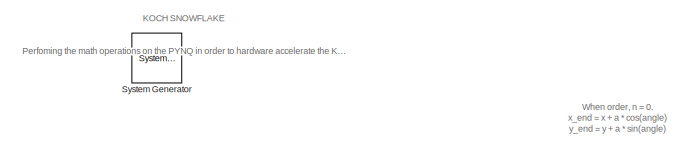
[diagram: root canvas - part 1/2, top left region]
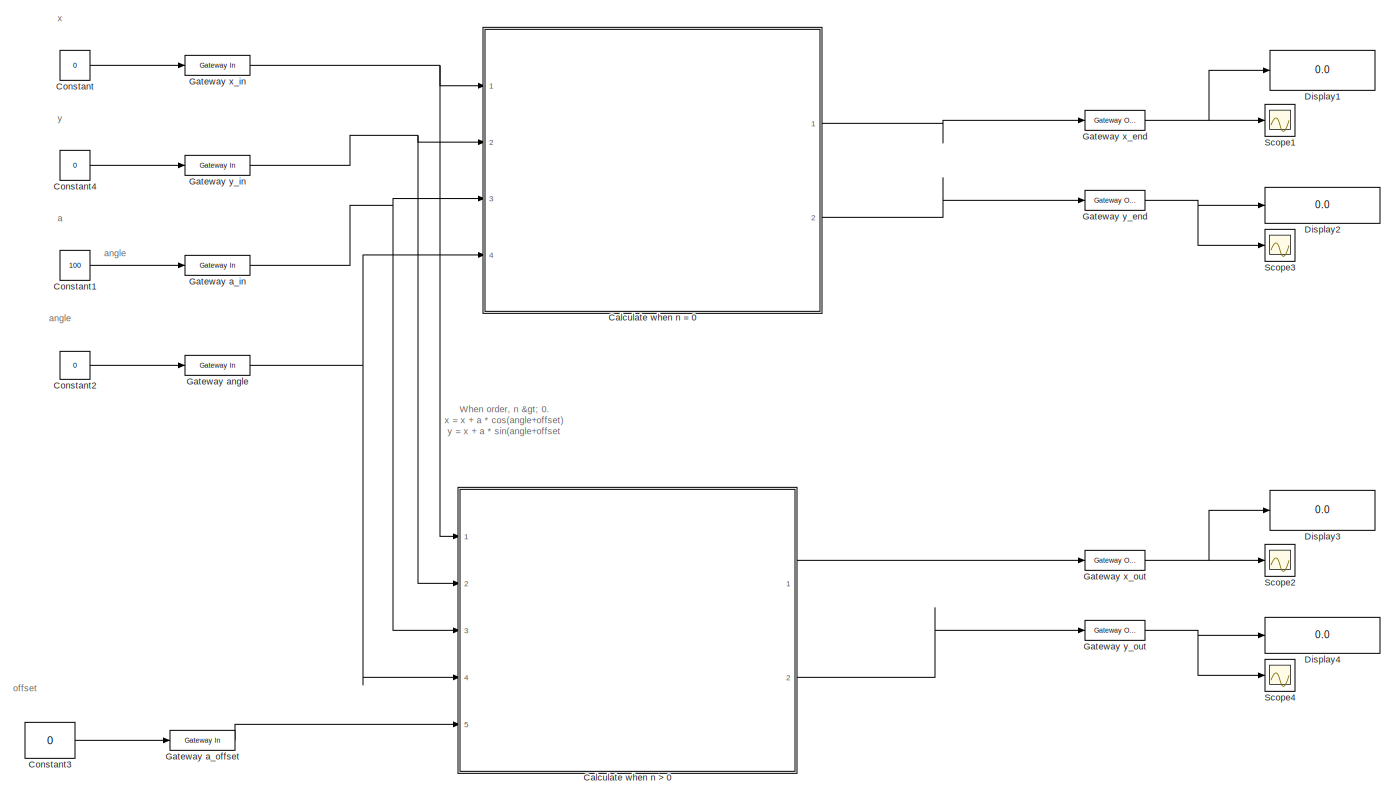
[diagram: root canvas - part 2/2, most of the canvas]
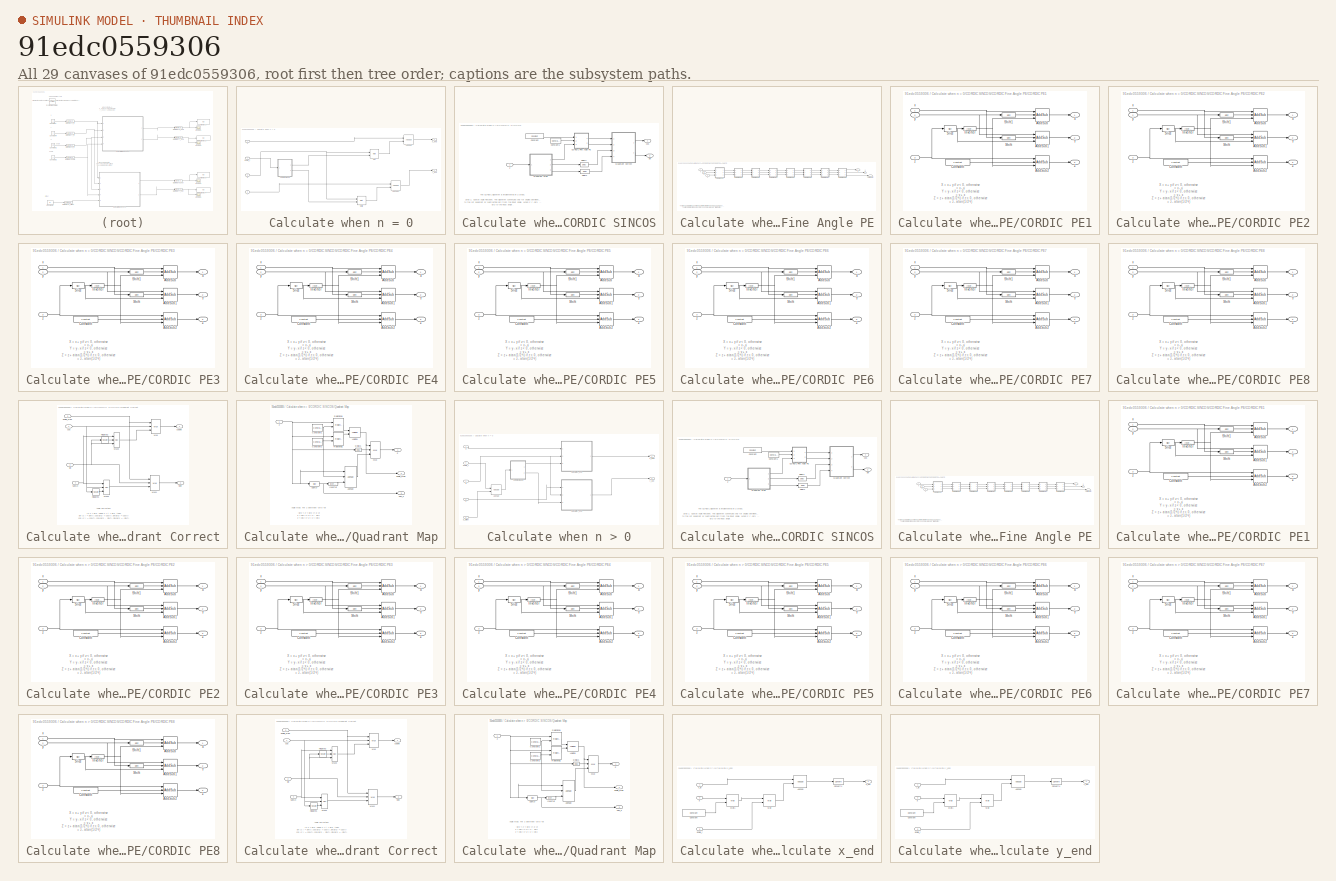
[diagram: thumbnail index - all 29 canvases of the model, root first then tree order]
MODEL slx_91edc0559306
KIND model
CONFIG AbsTol = auto
CONFIG EnableMultiTasking = off
CONFIG FixedStep = auto
CONFIG MaxStep = auto
CONFIG MinStep = auto
CONFIG RelTol = 1e-3
CONFIG SampleTimeConstraint = Unconstrained
CONFIG Solver = VariableStepAuto
CONFIG SolverName = VariableStepAuto
CONFIG StartTime = 0.0
CONFIG StopTime = 50
BLOCK [Reference]  System Generator  REF=xbsIndex_r4/ System Generator
  AttributesFormatString = System\nGenerator
  Ports = []
  SourceBlock = xbsIndex_r4/ System Generator
  SourceType = Xilinx System Generator Block
  Tag = genX
  UserDataPersistent = on
BLOCK [SubSystem] Calculate when n = 0
  Ports = [4, 2]
  RequestExecContextInheritance = off
BLOCK [Reference] Calculate when n = 0/AddSub  REF=xbsIndex_r4/AddSub
  Ports = [2, 1]
  SourceBlock = xbsIndex_r4/AddSub
  SourceType = Xilinx Adder/Subtracter Block
BLOCK [Reference] Calculate when n = 0/AddSub1  REF=xbsIndex_r4/AddSub
  Ports = [2, 1]
  SourceBlock = xbsIndex_r4/AddSub
  SourceType = Xilinx Adder/Subtracter Block
BLOCK [SubSystem] Calculate when n = 0/CORDIC SINCOS
  CopyFcn = set_param(gcb, 'MaskSelfModifiable', 'on', 'LinkStatus', 'none');
  Ports = [1, 2]
  RequestExecContextInheritance = off
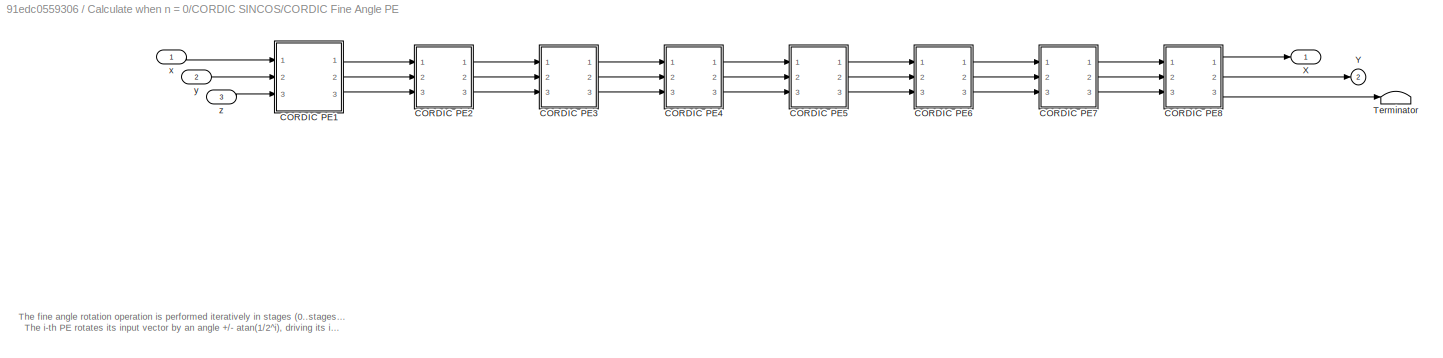
BLOCK [SubSystem] Calculate when n = 0/CORDIC SINCOS/CORDIC Fine Angle PE
  Ports = [3, 2]
  RequestExecContextInheritance = off
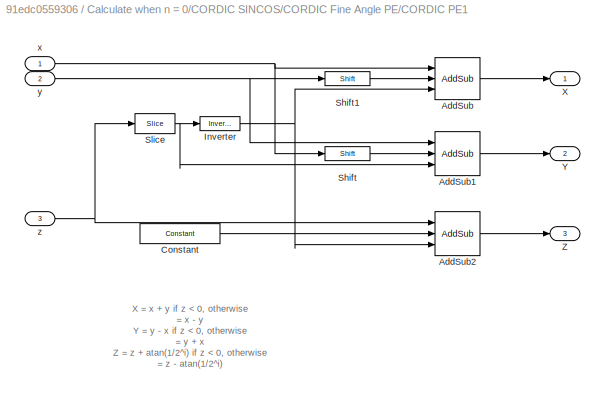
BLOCK [SubSystem] Calculate when n = 0/CORDIC SINCOS/CORDIC Fine Angle PE/CORDIC PE1
  Ports = [3, 3]
  RequestExecContextInheritance = off
BLOCK [Reference] Calculate when n = 0/CORDIC SINCOS/CORDIC Fine Angle PE/CORDIC PE1/AddSub  REF=xbsIndex_r4/AddSub
  Ports = [3, 1]
  SourceBlock = xbsIndex_r4/AddSub
  SourceType = Xilinx Adder/Subtracter Block
BLOCK [Reference] Calculate when n = 0/CORDIC SINCOS/CORDIC Fine Angle PE/CORDIC PE1/AddSub1  REF=xbsIndex_r4/AddSub
  Ports = [3, 1]
  SourceBlock = xbsIndex_r4/AddSub
  SourceType = Xilinx Adder/Subtracter Block
BLOCK [Reference] Calculate when n = 0/CORDIC SINCOS/CORDIC Fine Angle PE/CORDIC PE1/AddSub2  REF=xbsIndex_r4/AddSub
  Ports = [3, 1]
  SourceBlock = xbsIndex_r4/AddSub
  SourceType = Xilinx Adder/Subtracter Block
BLOCK [Reference] Calculate when n = 0/CORDIC SINCOS/CORDIC Fine Angle PE/CORDIC PE1/Constant  REF=xbsIndex_r4/Constant
  Ports = [0, 1]
  SourceBlock = xbsIndex_r4/Constant
  SourceType = Xilinx Constant Block Block
BLOCK [Reference] Calculate when n = 0/CORDIC SINCOS/CORDIC Fine Angle PE/CORDIC PE1/Inverter  REF=xbsIndex_r4/Inverter
  Ports = [1, 1]
  SourceBlock = xbsIndex_r4/Inverter
  SourceType = Xilinx Inverter Block
BLOCK [Reference] Calculate when n = 0/CORDIC SINCOS/CORDIC Fine Angle PE/CORDIC PE1/Shift  REF=xbsIndex_r4/Shift
  Ports = [1, 1]
  SourceBlock = xbsIndex_r4/Shift
  SourceType = Xilinx Binary Shift Operator Block
BLOCK [Reference] Calculate when n = 0/CORDIC SINCOS/CORDIC Fine Angle PE/CORDIC PE1/Shift1  REF=xbsIndex_r4/Shift
  Ports = [1, 1]
  SourceBlock = xbsIndex_r4/Shift
  SourceType = Xilinx Binary Shift Operator Block
BLOCK [Reference] Calculate when n = 0/CORDIC SINCOS/CORDIC Fine Angle PE/CORDIC PE1/Slice  REF=xbsIndex_r4/Slice
  Ports = [1, 1]
  SourceBlock = xbsIndex_r4/Slice
  SourceType = Xilinx Bit Slice Extractor Block
BLOCK [Outport] Calculate when n = 0/CORDIC SINCOS/CORDIC Fine Angle PE/CORDIC PE1/X
BLOCK [Outport] Calculate when n = 0/CORDIC SINCOS/CORDIC Fine Angle PE/CORDIC PE1/Y
  Port = 2
BLOCK [Outport] Calculate when n = 0/CORDIC SINCOS/CORDIC Fine Angle PE/CORDIC PE1/Z
  Port = 3
BLOCK [Inport] Calculate when n = 0/CORDIC SINCOS/CORDIC Fine Angle PE/CORDIC PE1/x
  NameLocation = top
BLOCK [Inport] Calculate when n = 0/CORDIC SINCOS/CORDIC Fine Angle PE/CORDIC PE1/y
  Port = 2
BLOCK [Inport] Calculate when n = 0/CORDIC SINCOS/CORDIC Fine Angle PE/CORDIC PE1/z
  Port = 3
BLOCK [SubSystem] Calculate when n = 0/CORDIC SINCOS/CORDIC Fine Angle PE/CORDIC PE2
  Ports = [3, 3]
  RequestExecContextInheritance = off
BLOCK [Reference] Calculate when n = 0/CORDIC SINCOS/CORDIC Fine Angle PE/CORDIC PE2/AddSub  REF=xbsIndex_r4/AddSub
  Ports = [3, 1]
  SourceBlock = xbsIndex_r4/AddSub
  SourceType = Xilinx Adder/Subtracter Block
BLOCK [Reference] Calculate when n = 0/CORDIC SINCOS/CORDIC Fine Angle PE/CORDIC PE2/AddSub1  REF=xbsIndex_r4/AddSub
  Ports = [3, 1]
  SourceBlock = xbsIndex_r4/AddSub
  SourceType = Xilinx Adder/Subtracter Block
BLOCK [Reference] Calculate when n = 0/CORDIC SINCOS/CORDIC Fine Angle PE/CORDIC PE2/AddSub2  REF=xbsIndex_r4/AddSub
  Ports = [3, 1]
  SourceBlock = xbsIndex_r4/AddSub
  SourceType = Xilinx Adder/Subtracter Block
BLOCK [Reference] Calculate when n = 0/CORDIC SINCOS/CORDIC Fine Angle PE/CORDIC PE2/Constant  REF=xbsIndex_r4/Constant
  Ports = [0, 1]
  SourceBlock = xbsIndex_r4/Constant
  SourceType = Xilinx Constant Block Block
BLOCK [Reference] Calculate when n = 0/CORDIC SINCOS/CORDIC Fine Angle PE/CORDIC PE2/Inverter  REF=xbsIndex_r4/Inverter
  Ports = [1, 1]
  SourceBlock = xbsIndex_r4/Inverter
  SourceType = Xilinx Inverter Block
BLOCK [Reference] Calculate when n = 0/CORDIC SINCOS/CORDIC Fine Angle PE/CORDIC PE2/Shift  REF=xbsIndex_r4/Shift
  Ports = [1, 1]
  SourceBlock = xbsIndex_r4/Shift
  SourceType = Xilinx Binary Shift Operator Block
BLOCK [Reference] Calculate when n = 0/CORDIC SINCOS/CORDIC Fine Angle PE/CORDIC PE2/Shift1  REF=xbsIndex_r4/Shift
  Ports = [1, 1]
  SourceBlock = xbsIndex_r4/Shift
  SourceType = Xilinx Binary Shift Operator Block
BLOCK [Reference] Calculate when n = 0/CORDIC SINCOS/CORDIC Fine Angle PE/CORDIC PE2/Slice  REF=xbsIndex_r4/Slice
  Ports = [1, 1]
  SourceBlock = xbsIndex_r4/Slice
  SourceType = Xilinx Bit Slice Extractor Block
BLOCK [Outport] Calculate when n = 0/CORDIC SINCOS/CORDIC Fine Angle PE/CORDIC PE2/X
BLOCK [Outport] Calculate when n = 0/CORDIC SINCOS/CORDIC Fine Angle PE/CORDIC PE2/Y
  Port = 2
BLOCK [Outport] Calculate when n = 0/CORDIC SINCOS/CORDIC Fine Angle PE/CORDIC PE2/Z
  Port = 3
BLOCK [Inport] Calculate when n = 0/CORDIC SINCOS/CORDIC Fine Angle PE/CORDIC PE2/x
  NameLocation = top
BLOCK [Inport] Calculate when n = 0/CORDIC SINCOS/CORDIC Fine Angle PE/CORDIC PE2/y
  Port = 2
BLOCK [Inport] Calculate when n = 0/CORDIC SINCOS/CORDIC Fine Angle PE/CORDIC PE2/z
  Port = 3
BLOCK [SubSystem] Calculate when n = 0/CORDIC SINCOS/CORDIC Fine Angle PE/CORDIC PE3
  Ports = [3, 3]
  RequestExecContextInheritance = off
BLOCK [Reference] Calculate when n = 0/CORDIC SINCOS/CORDIC Fine Angle PE/CORDIC PE3/AddSub  REF=xbsIndex_r4/AddSub
  Ports = [3, 1]
  SourceBlock = xbsIndex_r4/AddSub
  SourceType = Xilinx Adder/Subtracter Block
BLOCK [Reference] Calculate when n = 0/CORDIC SINCOS/CORDIC Fine Angle PE/CORDIC PE3/AddSub1  REF=xbsIndex_r4/AddSub
  Ports = [3, 1]
  SourceBlock = xbsIndex_r4/AddSub
  SourceType = Xilinx Adder/Subtracter Block
BLOCK [Reference] Calculate when n = 0/CORDIC SINCOS/CORDIC Fine Angle PE/CORDIC PE3/AddSub2  REF=xbsIndex_r4/AddSub
  Ports = [3, 1]
  SourceBlock = xbsIndex_r4/AddSub
  SourceType = Xilinx Adder/Subtracter Block
BLOCK [Reference] Calculate when n = 0/CORDIC SINCOS/CORDIC Fine Angle PE/CORDIC PE3/Constant  REF=xbsIndex_r4/Constant
  Ports = [0, 1]
  SourceBlock = xbsIndex_r4/Constant
  SourceType = Xilinx Constant Block Block
BLOCK [Reference] Calculate when n = 0/CORDIC SINCOS/CORDIC Fine Angle PE/CORDIC PE3/Inverter  REF=xbsIndex_r4/Inverter
  Ports = [1, 1]
  SourceBlock = xbsIndex_r4/Inverter
  SourceType = Xilinx Inverter Block
BLOCK [Reference] Calculate when n = 0/CORDIC SINCOS/CORDIC Fine Angle PE/CORDIC PE3/Shift  REF=xbsIndex_r4/Shift
  Ports = [1, 1]
  SourceBlock = xbsIndex_r4/Shift
  SourceType = Xilinx Binary Shift Operator Block
BLOCK [Reference] Calculate when n = 0/CORDIC SINCOS/CORDIC Fine Angle PE/CORDIC PE3/Shift1  REF=xbsIndex_r4/Shift
  Ports = [1, 1]
  SourceBlock = xbsIndex_r4/Shift
  SourceType = Xilinx Binary Shift Operator Block
BLOCK [Reference] Calculate when n = 0/CORDIC SINCOS/CORDIC Fine Angle PE/CORDIC PE3/Slice  REF=xbsIndex_r4/Slice
  Ports = [1, 1]
  SourceBlock = xbsIndex_r4/Slice
  SourceType = Xilinx Bit Slice Extractor Block
BLOCK [Outport] Calculate when n = 0/CORDIC SINCOS/CORDIC Fine Angle PE/CORDIC PE3/X
BLOCK [Outport] Calculate when n = 0/CORDIC SINCOS/CORDIC Fine Angle PE/CORDIC PE3/Y
  Port = 2
BLOCK [Outport] Calculate when n = 0/CORDIC SINCOS/CORDIC Fine Angle PE/CORDIC PE3/Z
  Port = 3
BLOCK [Inport] Calculate when n = 0/CORDIC SINCOS/CORDIC Fine Angle PE/CORDIC PE3/x
  NameLocation = top
BLOCK [Inport] Calculate when n = 0/CORDIC SINCOS/CORDIC Fine Angle PE/CORDIC PE3/y
  Port = 2
BLOCK [Inport] Calculate when n = 0/CORDIC SINCOS/CORDIC Fine Angle PE/CORDIC PE3/z
  Port = 3
BLOCK [SubSystem] Calculate when n = 0/CORDIC SINCOS/CORDIC Fine Angle PE/CORDIC PE4
  Ports = [3, 3]
  RequestExecContextInheritance = off
BLOCK [Reference] Calculate when n = 0/CORDIC SINCOS/CORDIC Fine Angle PE/CORDIC PE4/AddSub  REF=xbsIndex_r4/AddSub
  Ports = [3, 1]
  SourceBlock = xbsIndex_r4/AddSub
  SourceType = Xilinx Adder/Subtracter Block
BLOCK [Reference] Calculate when n = 0/CORDIC SINCOS/CORDIC Fine Angle PE/CORDIC PE4/AddSub1  REF=xbsIndex_r4/AddSub
  Ports = [3, 1]
  SourceBlock = xbsIndex_r4/AddSub
  SourceType = Xilinx Adder/Subtracter Block
BLOCK [Reference] Calculate when n = 0/CORDIC SINCOS/CORDIC Fine Angle PE/CORDIC PE4/AddSub2  REF=xbsIndex_r4/AddSub
  Ports = [3, 1]
  SourceBlock = xbsIndex_r4/AddSub
  SourceType = Xilinx Adder/Subtracter Block
BLOCK [Reference] Calculate when n = 0/CORDIC SINCOS/CORDIC Fine Angle PE/CORDIC PE4/Constant  REF=xbsIndex_r4/Constant
  Ports = [0, 1]
  SourceBlock = xbsIndex_r4/Constant
  SourceType = Xilinx Constant Block Block
BLOCK [Reference] Calculate when n = 0/CORDIC SINCOS/CORDIC Fine Angle PE/CORDIC PE4/Inverter  REF=xbsIndex_r4/Inverter
  Ports = [1, 1]
  SourceBlock = xbsIndex_r4/Inverter
  SourceType = Xilinx Inverter Block
BLOCK [Reference] Calculate when n = 0/CORDIC SINCOS/CORDIC Fine Angle PE/CORDIC PE4/Shift  REF=xbsIndex_r4/Shift
  Ports = [1, 1]
  SourceBlock = xbsIndex_r4/Shift
  SourceType = Xilinx Binary Shift Operator Block
BLOCK [Reference] Calculate when n = 0/CORDIC SINCOS/CORDIC Fine Angle PE/CORDIC PE4/Shift1  REF=xbsIndex_r4/Shift
  Ports = [1, 1]
  SourceBlock = xbsIndex_r4/Shift
  SourceType = Xilinx Binary Shift Operator Block
BLOCK [Reference] Calculate when n = 0/CORDIC SINCOS/CORDIC Fine Angle PE/CORDIC PE4/Slice  REF=xbsIndex_r4/Slice
  Ports = [1, 1]
  SourceBlock = xbsIndex_r4/Slice
  SourceType = Xilinx Bit Slice Extractor Block
BLOCK [Outport] Calculate when n = 0/CORDIC SINCOS/CORDIC Fine Angle PE/CORDIC PE4/X
BLOCK [Outport] Calculate when n = 0/CORDIC SINCOS/CORDIC Fine Angle PE/CORDIC PE4/Y
  Port = 2
BLOCK [Outport] Calculate when n = 0/CORDIC SINCOS/CORDIC Fine Angle PE/CORDIC PE4/Z
  Port = 3
BLOCK [Inport] Calculate when n = 0/CORDIC SINCOS/CORDIC Fine Angle PE/CORDIC PE4/x
  NameLocation = top
BLOCK [Inport] Calculate when n = 0/CORDIC SINCOS/CORDIC Fine Angle PE/CORDIC PE4/y
  Port = 2
BLOCK [Inport] Calculate when n = 0/CORDIC SINCOS/CORDIC Fine Angle PE/CORDIC PE4/z
  Port = 3
BLOCK [SubSystem] Calculate when n = 0/CORDIC SINCOS/CORDIC Fine Angle PE/CORDIC PE5
  Ports = [3, 3]
  RequestExecContextInheritance = off
BLOCK [Reference] Calculate when n = 0/CORDIC SINCOS/CORDIC Fine Angle PE/CORDIC PE5/AddSub  REF=xbsIndex_r4/AddSub
  Ports = [3, 1]
  SourceBlock = xbsIndex_r4/AddSub
  SourceType = Xilinx Adder/Subtracter Block
BLOCK [Reference] Calculate when n = 0/CORDIC SINCOS/CORDIC Fine Angle PE/CORDIC PE5/AddSub1  REF=xbsIndex_r4/AddSub
  Ports = [3, 1]
  SourceBlock = xbsIndex_r4/AddSub
  SourceType = Xilinx Adder/Subtracter Block
BLOCK [Reference] Calculate when n = 0/CORDIC SINCOS/CORDIC Fine Angle PE/CORDIC PE5/AddSub2  REF=xbsIndex_r4/AddSub
  Ports = [3, 1]
  SourceBlock = xbsIndex_r4/AddSub
  SourceType = Xilinx Adder/Subtracter Block
BLOCK [Reference] Calculate when n = 0/CORDIC SINCOS/CORDIC Fine Angle PE/CORDIC PE5/Constant  REF=xbsIndex_r4/Constant
  Ports = [0, 1]
  SourceBlock = xbsIndex_r4/Constant
  SourceType = Xilinx Constant Block Block
BLOCK [Reference] Calculate when n = 0/CORDIC SINCOS/CORDIC Fine Angle PE/CORDIC PE5/Inverter  REF=xbsIndex_r4/Inverter
  Ports = [1, 1]
  SourceBlock = xbsIndex_r4/Inverter
  SourceType = Xilinx Inverter Block
BLOCK [Reference] Calculate when n = 0/CORDIC SINCOS/CORDIC Fine Angle PE/CORDIC PE5/Shift  REF=xbsIndex_r4/Shift
  Ports = [1, 1]
  SourceBlock = xbsIndex_r4/Shift
  SourceType = Xilinx Binary Shift Operator Block
BLOCK [Reference] Calculate when n = 0/CORDIC SINCOS/CORDIC Fine Angle PE/CORDIC PE5/Shift1  REF=xbsIndex_r4/Shift
  Ports = [1, 1]
  SourceBlock = xbsIndex_r4/Shift
  SourceType = Xilinx Binary Shift Operator Block
BLOCK [Reference] Calculate when n = 0/CORDIC SINCOS/CORDIC Fine Angle PE/CORDIC PE5/Slice  REF=xbsIndex_r4/Slice
  Ports = [1, 1]
  SourceBlock = xbsIndex_r4/Slice
  SourceType = Xilinx Bit Slice Extractor Block
BLOCK [Outport] Calculate when n = 0/CORDIC SINCOS/CORDIC Fine Angle PE/CORDIC PE5/X
BLOCK [Outport] Calculate when n = 0/CORDIC SINCOS/CORDIC Fine Angle PE/CORDIC PE5/Y
  Port = 2
BLOCK [Outport] Calculate when n = 0/CORDIC SINCOS/CORDIC Fine Angle PE/CORDIC PE5/Z
  Port = 3
BLOCK [Inport] Calculate when n = 0/CORDIC SINCOS/CORDIC Fine Angle PE/CORDIC PE5/x
  NameLocation = top
BLOCK [Inport] Calculate when n = 0/CORDIC SINCOS/CORDIC Fine Angle PE/CORDIC PE5/y
  Port = 2
BLOCK [Inport] Calculate when n = 0/CORDIC SINCOS/CORDIC Fine Angle PE/CORDIC PE5/z
  Port = 3
BLOCK [SubSystem] Calculate when n = 0/CORDIC SINCOS/CORDIC Fine Angle PE/CORDIC PE6
  Ports = [3, 3]
  RequestExecContextInheritance = off
BLOCK [Reference] Calculate when n = 0/CORDIC SINCOS/CORDIC Fine Angle PE/CORDIC PE6/AddSub  REF=xbsIndex_r4/AddSub
  Ports = [3, 1]
  SourceBlock = xbsIndex_r4/AddSub
  SourceType = Xilinx Adder/Subtracter Block
BLOCK [Reference] Calculate when n = 0/CORDIC SINCOS/CORDIC Fine Angle PE/CORDIC PE6/AddSub1  REF=xbsIndex_r4/AddSub
  Ports = [3, 1]
  SourceBlock = xbsIndex_r4/AddSub
  SourceType = Xilinx Adder/Subtracter Block
BLOCK [Reference] Calculate when n = 0/CORDIC SINCOS/CORDIC Fine Angle PE/CORDIC PE6/AddSub2  REF=xbsIndex_r4/AddSub
  Ports = [3, 1]
  SourceBlock = xbsIndex_r4/AddSub
  SourceType = Xilinx Adder/Subtracter Block
BLOCK [Reference] Calculate when n = 0/CORDIC SINCOS/CORDIC Fine Angle PE/CORDIC PE6/Constant  REF=xbsIndex_r4/Constant
  Ports = [0, 1]
  SourceBlock = xbsIndex_r4/Constant
  SourceType = Xilinx Constant Block Block
BLOCK [Reference] Calculate when n = 0/CORDIC SINCOS/CORDIC Fine Angle PE/CORDIC PE6/Inverter  REF=xbsIndex_r4/Inverter
  Ports = [1, 1]
  SourceBlock = xbsIndex_r4/Inverter
  SourceType = Xilinx Inverter Block
BLOCK [Reference] Calculate when n = 0/CORDIC SINCOS/CORDIC Fine Angle PE/CORDIC PE6/Shift  REF=xbsIndex_r4/Shift
  Ports = [1, 1]
  SourceBlock = xbsIndex_r4/Shift
  SourceType = Xilinx Binary Shift Operator Block
BLOCK [Reference] Calculate when n = 0/CORDIC SINCOS/CORDIC Fine Angle PE/CORDIC PE6/Shift1  REF=xbsIndex_r4/Shift
  Ports = [1, 1]
  SourceBlock = xbsIndex_r4/Shift
  SourceType = Xilinx Binary Shift Operator Block
BLOCK [Reference] Calculate when n = 0/CORDIC SINCOS/CORDIC Fine Angle PE/CORDIC PE6/Slice  REF=xbsIndex_r4/Slice
  Ports = [1, 1]
  SourceBlock = xbsIndex_r4/Slice
  SourceType = Xilinx Bit Slice Extractor Block
BLOCK [Outport] Calculate when n = 0/CORDIC SINCOS/CORDIC Fine Angle PE/CORDIC PE6/X
BLOCK [Outport] Calculate when n = 0/CORDIC SINCOS/CORDIC Fine Angle PE/CORDIC PE6/Y
  Port = 2
BLOCK [Outport] Calculate when n = 0/CORDIC SINCOS/CORDIC Fine Angle PE/CORDIC PE6/Z
  Port = 3
BLOCK [Inport] Calculate when n = 0/CORDIC SINCOS/CORDIC Fine Angle PE/CORDIC PE6/x
  NameLocation = top
BLOCK [Inport] Calculate when n = 0/CORDIC SINCOS/CORDIC Fine Angle PE/CORDIC PE6/y
  Port = 2
BLOCK [Inport] Calculate when n = 0/CORDIC SINCOS/CORDIC Fine Angle PE/CORDIC PE6/z
  Port = 3
BLOCK [SubSystem] Calculate when n = 0/CORDIC SINCOS/CORDIC Fine Angle PE/CORDIC PE7
  Ports = [3, 3]
  RequestExecContextInheritance = off
BLOCK [Reference] Calculate when n = 0/CORDIC SINCOS/CORDIC Fine Angle PE/CORDIC PE7/AddSub  REF=xbsIndex_r4/AddSub
  Ports = [3, 1]
  SourceBlock = xbsIndex_r4/AddSub
  SourceType = Xilinx Adder/Subtracter Block
BLOCK [Reference] Calculate when n = 0/CORDIC SINCOS/CORDIC Fine Angle PE/CORDIC PE7/AddSub1  REF=xbsIndex_r4/AddSub
  Ports = [3, 1]
  SourceBlock = xbsIndex_r4/AddSub
  SourceType = Xilinx Adder/Subtracter Block
BLOCK [Reference] Calculate when n = 0/CORDIC SINCOS/CORDIC Fine Angle PE/CORDIC PE7/AddSub2  REF=xbsIndex_r4/AddSub
  Ports = [3, 1]
  SourceBlock = xbsIndex_r4/AddSub
  SourceType = Xilinx Adder/Subtracter Block
BLOCK [Reference] Calculate when n = 0/CORDIC SINCOS/CORDIC Fine Angle PE/CORDIC PE7/Constant  REF=xbsIndex_r4/Constant
  Ports = [0, 1]
  SourceBlock = xbsIndex_r4/Constant
  SourceType = Xilinx Constant Block Block
BLOCK [Reference] Calculate when n = 0/CORDIC SINCOS/CORDIC Fine Angle PE/CORDIC PE7/Inverter  REF=xbsIndex_r4/Inverter
  Ports = [1, 1]
  SourceBlock = xbsIndex_r4/Inverter
  SourceType = Xilinx Inverter Block
BLOCK [Reference] Calculate when n = 0/CORDIC SINCOS/CORDIC Fine Angle PE/CORDIC PE7/Shift  REF=xbsIndex_r4/Shift
  Ports = [1, 1]
  SourceBlock = xbsIndex_r4/Shift
  SourceType = Xilinx Binary Shift Operator Block
BLOCK [Reference] Calculate when n = 0/CORDIC SINCOS/CORDIC Fine Angle PE/CORDIC PE7/Shift1  REF=xbsIndex_r4/Shift
  Ports = [1, 1]
  SourceBlock = xbsIndex_r4/Shift
  SourceType = Xilinx Binary Shift Operator Block
BLOCK [Reference] Calculate when n = 0/CORDIC SINCOS/CORDIC Fine Angle PE/CORDIC PE7/Slice  REF=xbsIndex_r4/Slice
  Ports = [1, 1]
  SourceBlock = xbsIndex_r4/Slice
  SourceType = Xilinx Bit Slice Extractor Block
BLOCK [Outport] Calculate when n = 0/CORDIC SINCOS/CORDIC Fine Angle PE/CORDIC PE7/X
BLOCK [Outport] Calculate when n = 0/CORDIC SINCOS/CORDIC Fine Angle PE/CORDIC PE7/Y
  Port = 2
BLOCK [Outport] Calculate when n = 0/CORDIC SINCOS/CORDIC Fine Angle PE/CORDIC PE7/Z
  Port = 3
BLOCK [Inport] Calculate when n = 0/CORDIC SINCOS/CORDIC Fine Angle PE/CORDIC PE7/x
  NameLocation = top
BLOCK [Inport] Calculate when n = 0/CORDIC SINCOS/CORDIC Fine Angle PE/CORDIC PE7/y
  Port = 2
BLOCK [Inport] Calculate when n = 0/CORDIC SINCOS/CORDIC Fine Angle PE/CORDIC PE7/z
  Port = 3
BLOCK [SubSystem] Calculate when n = 0/CORDIC SINCOS/CORDIC Fine Angle PE/CORDIC PE8
  Ports = [3, 3]
  RequestExecContextInheritance = off
BLOCK [Reference] Calculate when n = 0/CORDIC SINCOS/CORDIC Fine Angle PE/CORDIC PE8/AddSub  REF=xbsIndex_r4/AddSub
  Ports = [3, 1]
  SourceBlock = xbsIndex_r4/AddSub
  SourceType = Xilinx Adder/Subtracter Block
BLOCK [Reference] Calculate when n = 0/CORDIC SINCOS/CORDIC Fine Angle PE/CORDIC PE8/AddSub1  REF=xbsIndex_r4/AddSub
  Ports = [3, 1]
  SourceBlock = xbsIndex_r4/AddSub
  SourceType = Xilinx Adder/Subtracter Block
BLOCK [Reference] Calculate when n = 0/CORDIC SINCOS/CORDIC Fine Angle PE/CORDIC PE8/AddSub2  REF=xbsIndex_r4/AddSub
  Ports = [3, 1]
  SourceBlock = xbsIndex_r4/AddSub
  SourceType = Xilinx Adder/Subtracter Block
BLOCK [Reference] Calculate when n = 0/CORDIC SINCOS/CORDIC Fine Angle PE/CORDIC PE8/Constant  REF=xbsIndex_r4/Constant
  Ports = [0, 1]
  SourceBlock = xbsIndex_r4/Constant
  SourceType = Xilinx Constant Block Block
BLOCK [Reference] Calculate when n = 0/CORDIC SINCOS/CORDIC Fine Angle PE/CORDIC PE8/Inverter  REF=xbsIndex_r4/Inverter
  Ports = [1, 1]
  SourceBlock = xbsIndex_r4/Inverter
  SourceType = Xilinx Inverter Block
BLOCK [Reference] Calculate when n = 0/CORDIC SINCOS/CORDIC Fine Angle PE/CORDIC PE8/Shift  REF=xbsIndex_r4/Shift
  Ports = [1, 1]
  SourceBlock = xbsIndex_r4/Shift
  SourceType = Xilinx Binary Shift Operator Block
BLOCK [Reference] Calculate when n = 0/CORDIC SINCOS/CORDIC Fine Angle PE/CORDIC PE8/Shift1  REF=xbsIndex_r4/Shift
  Ports = [1, 1]
  SourceBlock = xbsIndex_r4/Shift
  SourceType = Xilinx Binary Shift Operator Block
BLOCK [Reference] Calculate when n = 0/CORDIC SINCOS/CORDIC Fine Angle PE/CORDIC PE8/Slice  REF=xbsIndex_r4/Slice
  Ports = [1, 1]
  SourceBlock = xbsIndex_r4/Slice
  SourceType = Xilinx Bit Slice Extractor Block
BLOCK [Outport] Calculate when n = 0/CORDIC SINCOS/CORDIC Fine Angle PE/CORDIC PE8/X
BLOCK [Outport] Calculate when n = 0/CORDIC SINCOS/CORDIC Fine Angle PE/CORDIC PE8/Y
  Port = 2
BLOCK [Outport] Calculate when n = 0/CORDIC SINCOS/CORDIC Fine Angle PE/CORDIC PE8/Z
  Port = 3
BLOCK [Inport] Calculate when n = 0/CORDIC SINCOS/CORDIC Fine Angle PE/CORDIC PE8/x
  NameLocation = top
BLOCK [Inport] Calculate when n = 0/CORDIC SINCOS/CORDIC Fine Angle PE/CORDIC PE8/y
  Port = 2
BLOCK [Inport] Calculate when n = 0/CORDIC SINCOS/CORDIC Fine Angle PE/CORDIC PE8/z
  Port = 3
BLOCK [Terminator] Calculate when n = 0/CORDIC SINCOS/CORDIC Fine Angle PE/Terminator
  NameLocation = top
BLOCK [Outport] Calculate when n = 0/CORDIC SINCOS/CORDIC Fine Angle PE/X
  NameLocation = top
BLOCK [Outport] Calculate when n = 0/CORDIC SINCOS/CORDIC Fine Angle PE/Y
  Port = 2
BLOCK [Inport] Calculate when n = 0/CORDIC SINCOS/CORDIC Fine Angle PE/x
BLOCK [Inport] Calculate when n = 0/CORDIC SINCOS/CORDIC Fine Angle PE/y
  Port = 2
BLOCK [Inport] Calculate when n = 0/CORDIC SINCOS/CORDIC Fine Angle PE/z
  Port = 3
BLOCK [Reference] Calculate when n = 0/CORDIC SINCOS/Constant  REF=xbsIndex_r4/Constant
  Ports = [0, 1]
  SourceBlock = xbsIndex_r4/Constant
  SourceType = Xilinx Constant Block Block
BLOCK [Reference] Calculate when n = 0/CORDIC SINCOS/Constant1  REF=xbsIndex_r4/Constant
  Ports = [0, 1]
  SourceBlock = xbsIndex_r4/Constant
  SourceType = Xilinx Constant Block Block
BLOCK [Reference] Calculate when n = 0/CORDIC SINCOS/Delay1  REF=xbsIndex_r4/Delay
  Ports = [1, 1]
  SourceBlock = xbsIndex_r4/Delay
  SourceType = Xilinx Delay Block
BLOCK [Reference] Calculate when n = 0/CORDIC SINCOS/Delay4  REF=xbsIndex_r4/Delay
  Ports = [1, 1]
  SourceBlock = xbsIndex_r4/Delay
  SourceType = Xilinx Delay Block
BLOCK [SubSystem] Calculate when n = 0/CORDIC SINCOS/Quadrant Correct
  Ports = [4, 2]
  RequestExecContextInheritance = off
BLOCK [Reference] Calculate when n = 0/CORDIC SINCOS/Quadrant Correct/Mux  REF=xbsIndex_r4/Mux
  Ports = [3, 1]
  SourceBlock = xbsIndex_r4/Mux
  SourceType = Xilinx Bus Multiplexer Block
BLOCK [Reference] Calculate when n = 0/CORDIC SINCOS/Quadrant Correct/Mux1  REF=xbsIndex_r4/Mux
  Ports = [3, 1]
  SourceBlock = xbsIndex_r4/Mux
  SourceType = Xilinx Bus Multiplexer Block
BLOCK [Reference] Calculate when n = 0/CORDIC SINCOS/Quadrant Correct/Mux2  REF=xbsIndex_r4/Mux
  Ports = [3, 1]
  SourceBlock = xbsIndex_r4/Mux
  SourceType = Xilinx Bus Multiplexer Block
BLOCK [Reference] Calculate when n = 0/CORDIC SINCOS/Quadrant Correct/Mux3  REF=xbsIndex_r4/Mux
  Ports = [3, 1]
  SourceBlock = xbsIndex_r4/Mux
  SourceType = Xilinx Bus Multiplexer Block
BLOCK [Reference] Calculate when n = 0/CORDIC SINCOS/Quadrant Correct/Negate1  REF=xbsIndex_r4/Negate
  Ports = [1, 1]
  SourceBlock = xbsIndex_r4/Negate
  SourceType = Xilinx Negate Block Block
BLOCK [Reference] Calculate when n = 0/CORDIC SINCOS/Quadrant Correct/Negate2  REF=xbsIndex_r4/Negate
  Ports = [1, 1]
  SourceBlock = xbsIndex_r4/Negate
  SourceType = Xilinx Negate Block Block
BLOCK [Inport] Calculate when n = 0/CORDIC SINCOS/Quadrant Correct/angle_map
  Port = 3
BLOCK [Inport] Calculate when n = 0/CORDIC SINCOS/Quadrant Correct/cos
BLOCK [Outport] Calculate when n = 0/CORDIC SINCOS/Quadrant Correct/cosine
BLOCK [Inport] Calculate when n = 0/CORDIC SINCOS/Quadrant Correct/sgn(z)
  Port = 4
BLOCK [Inport] Calculate when n = 0/CORDIC SINCOS/Quadrant Correct/sin
  Port = 2
BLOCK [Outport] Calculate when n = 0/CORDIC SINCOS/Quadrant Correct/sine
  Port = 2
BLOCK [SubSystem] Calculate when n = 0/CORDIC SINCOS/Quadrant Map
  Ports = [1, 3]
  RequestExecContextInheritance = off
BLOCK [Reference] Calculate when n = 0/CORDIC SINCOS/Quadrant Map/AddSub  REF=xbsIndex_r4/AddSub
  Ports = [3, 1]
  SourceBlock = xbsIndex_r4/AddSub
  SourceType = Xilinx Adder/Subtracter Block
BLOCK [Reference] Calculate when n = 0/CORDIC SINCOS/Quadrant Map/Constant1  REF=xbsIndex_r4/Constant
  Ports = [0, 1]
  SourceBlock = xbsIndex_r4/Constant
  SourceType = Xilinx Constant Block Block
BLOCK [Reference] Calculate when n = 0/CORDIC SINCOS/Quadrant Map/Constant2  REF=xbsIndex_r4/Constant
  Ports = [0, 1]
  SourceBlock = xbsIndex_r4/Constant
  SourceType = Xilinx Constant Block Block
BLOCK [Reference] Calculate when n = 0/CORDIC SINCOS/Quadrant Map/Delay1  REF=xbsIndex_r4/Delay
  Ports = [1, 1]
  SourceBlock = xbsIndex_r4/Delay
  SourceType = Xilinx Delay Block
BLOCK [Reference] Calculate when n = 0/CORDIC SINCOS/Quadrant Map/Inverter  REF=xbsIndex_r4/Inverter
  Ports = [1, 1]
  SourceBlock = xbsIndex_r4/Inverter
  SourceType = Xilinx Inverter Block
BLOCK [Reference] Calculate when n = 0/CORDIC SINCOS/Quadrant Map/Logical  REF=xbsIndex_r4/Logical
  Ports = [2, 1]
  SourceBlock = xbsIndex_r4/Logical
  SourceType = Xilinx Logical Block Block
BLOCK [Reference] Calculate when n = 0/CORDIC SINCOS/Quadrant Map/Mux  REF=xbsIndex_r4/Mux
  Ports = [3, 1]
  SourceBlock = xbsIndex_r4/Mux
  SourceType = Xilinx Bus Multiplexer Block
BLOCK [Reference] Calculate when n = 0/CORDIC SINCOS/Quadrant Map/Relational  REF=xbsIndex_r4/Relational
  NameLocation = top
  Ports = [2, 1]
  SourceBlock = xbsIndex_r4/Relational
  SourceType = Xilinx Arithmetic Relational Operator Block
BLOCK [Reference] Calculate when n = 0/CORDIC SINCOS/Quadrant Map/Relational1  REF=xbsIndex_r4/Relational
  Ports = [2, 1]
  SourceBlock = xbsIndex_r4/Relational
  SourceType = Xilinx Arithmetic Relational Operator Block
BLOCK [Outport] Calculate when n = 0/CORDIC SINCOS/Quadrant Map/Z
BLOCK [Outport] Calculate when n = 0/CORDIC SINCOS/Quadrant Map/angle_map
  Port = 2
BLOCK [Reference] Calculate when n = 0/CORDIC SINCOS/Quadrant Map/sgn(z)  REF=xbsIndex_r4/Slice
  NameLocation = top
  Ports = [1, 1]
  SourceBlock = xbsIndex_r4/Slice
  SourceType = Xilinx Bit Slice Extractor Block
BLOCK [Outport] Calculate when n = 0/CORDIC SINCOS/Quadrant Map/sgn_z
  Port = 3
BLOCK [Inport] Calculate when n = 0/CORDIC SINCOS/Quadrant Map/z
BLOCK [Outport] Calculate when n = 0/CORDIC SINCOS/cos
BLOCK [Outport] Calculate when n = 0/CORDIC SINCOS/sin
  Port = 2
BLOCK [Inport] Calculate when n = 0/CORDIC SINCOS/z
BLOCK [Reference] Calculate when n = 0/Mult  REF=xbsIndex_r4/Mult
  Ports = [2, 1]
  SourceBlock = xbsIndex_r4/Mult
  SourceType = Xilinx Multiplier Block
BLOCK [Reference] Calculate when n = 0/Mult1  REF=xbsIndex_r4/Mult
  Ports = [2, 1]
  SourceBlock = xbsIndex_r4/Mult
  SourceType = Xilinx Multiplier Block
BLOCK [Inport] Calculate when n = 0/a
  Port = 3
BLOCK [Inport] Calculate when n = 0/angle_r
  Port = 4
BLOCK [Inport] Calculate when n = 0/x
BLOCK [Outport] Calculate when n = 0/x_end
  VectorParamsAs1DForOutWhenUnconnected = off
BLOCK [Inport] Calculate when n = 0/y
  Port = 2
BLOCK [Outport] Calculate when n = 0/y_end
  Port = 2
  VectorParamsAs1DForOutWhenUnconnected = off
BLOCK [SubSystem] Calculate when n > 0
  Ports = [5, 2]
  RequestExecContextInheritance = off
BLOCK [Reference] Calculate when n > 0/AddSub  REF=xbsIndex_r4/AddSub
  Ports = [2, 1]
  SourceBlock = xbsIndex_r4/AddSub
  SourceType = Xilinx Adder/Subtracter Block
BLOCK [SubSystem] Calculate when n > 0/CORDIC SINCOS
  CopyFcn = set_param(gcb, 'MaskSelfModifiable', 'on', 'LinkStatus', 'none');
  Ports = [1, 2]
  RequestExecContextInheritance = off
BLOCK [SubSystem] Calculate when n > 0/CORDIC SINCOS/CORDIC Fine Angle PE
  Ports = [3, 2]
  RequestExecContextInheritance = off
BLOCK [SubSystem] Calculate when n > 0/CORDIC SINCOS/CORDIC Fine Angle PE/CORDIC PE1
  Ports = [3, 3]
  RequestExecContextInheritance = off
BLOCK [Reference] Calculate when n > 0/CORDIC SINCOS/CORDIC Fine Angle PE/CORDIC PE1/AddSub  REF=xbsIndex_r4/AddSub
  Ports = [3, 1]
  SourceBlock = xbsIndex_r4/AddSub
  SourceType = Xilinx Adder/Subtracter Block
BLOCK [Reference] Calculate when n > 0/CORDIC SINCOS/CORDIC Fine Angle PE/CORDIC PE1/AddSub1  REF=xbsIndex_r4/AddSub
  Ports = [3, 1]
  SourceBlock = xbsIndex_r4/AddSub
  SourceType = Xilinx Adder/Subtracter Block
BLOCK [Reference] Calculate when n > 0/CORDIC SINCOS/CORDIC Fine Angle PE/CORDIC PE1/AddSub2  REF=xbsIndex_r4/AddSub
  Ports = [3, 1]
  SourceBlock = xbsIndex_r4/AddSub
  SourceType = Xilinx Adder/Subtracter Block
BLOCK [Reference] Calculate when n > 0/CORDIC SINCOS/CORDIC Fine Angle PE/CORDIC PE1/Constant  REF=xbsIndex_r4/Constant
  Ports = [0, 1]
  SourceBlock = xbsIndex_r4/Constant
  SourceType = Xilinx Constant Block Block
BLOCK [Reference] Calculate when n > 0/CORDIC SINCOS/CORDIC Fine Angle PE/CORDIC PE1/Inverter  REF=xbsIndex_r4/Inverter
  Ports = [1, 1]
  SourceBlock = xbsIndex_r4/Inverter
  SourceType = Xilinx Inverter Block
BLOCK [Reference] Calculate when n > 0/CORDIC SINCOS/CORDIC Fine Angle PE/CORDIC PE1/Shift  REF=xbsIndex_r4/Shift
  Ports = [1, 1]
  SourceBlock = xbsIndex_r4/Shift
  SourceType = Xilinx Binary Shift Operator Block
BLOCK [Reference] Calculate when n > 0/CORDIC SINCOS/CORDIC Fine Angle PE/CORDIC PE1/Shift1  REF=xbsIndex_r4/Shift
  Ports = [1, 1]
  SourceBlock = xbsIndex_r4/Shift
  SourceType = Xilinx Binary Shift Operator Block
BLOCK [Reference] Calculate when n > 0/CORDIC SINCOS/CORDIC Fine Angle PE/CORDIC PE1/Slice  REF=xbsIndex_r4/Slice
  Ports = [1, 1]
  SourceBlock = xbsIndex_r4/Slice
  SourceType = Xilinx Bit Slice Extractor Block
BLOCK [Outport] Calculate when n > 0/CORDIC SINCOS/CORDIC Fine Angle PE/CORDIC PE1/X
BLOCK [Outport] Calculate when n > 0/CORDIC SINCOS/CORDIC Fine Angle PE/CORDIC PE1/Y
  Port = 2
BLOCK [Outport] Calculate when n > 0/CORDIC SINCOS/CORDIC Fine Angle PE/CORDIC PE1/Z
  Port = 3
BLOCK [Inport] Calculate when n > 0/CORDIC SINCOS/CORDIC Fine Angle PE/CORDIC PE1/x
  NameLocation = top
BLOCK [Inport] Calculate when n > 0/CORDIC SINCOS/CORDIC Fine Angle PE/CORDIC PE1/y
  Port = 2
BLOCK [Inport] Calculate when n > 0/CORDIC SINCOS/CORDIC Fine Angle PE/CORDIC PE1/z
  Port = 3
BLOCK [SubSystem] Calculate when n > 0/CORDIC SINCOS/CORDIC Fine Angle PE/CORDIC PE2
  Ports = [3, 3]
  RequestExecContextInheritance = off
BLOCK [Reference] Calculate when n > 0/CORDIC SINCOS/CORDIC Fine Angle PE/CORDIC PE2/AddSub  REF=xbsIndex_r4/AddSub
  Ports = [3, 1]
  SourceBlock = xbsIndex_r4/AddSub
  SourceType = Xilinx Adder/Subtracter Block
BLOCK [Reference] Calculate when n > 0/CORDIC SINCOS/CORDIC Fine Angle PE/CORDIC PE2/AddSub1  REF=xbsIndex_r4/AddSub
  Ports = [3, 1]
  SourceBlock = xbsIndex_r4/AddSub
  SourceType = Xilinx Adder/Subtracter Block
BLOCK [Reference] Calculate when n > 0/CORDIC SINCOS/CORDIC Fine Angle PE/CORDIC PE2/AddSub2  REF=xbsIndex_r4/AddSub
  Ports = [3, 1]
  SourceBlock = xbsIndex_r4/AddSub
  SourceType = Xilinx Adder/Subtracter Block
BLOCK [Reference] Calculate when n > 0/CORDIC SINCOS/CORDIC Fine Angle PE/CORDIC PE2/Constant  REF=xbsIndex_r4/Constant
  Ports = [0, 1]
  SourceBlock = xbsIndex_r4/Constant
  SourceType = Xilinx Constant Block Block
BLOCK [Reference] Calculate when n > 0/CORDIC SINCOS/CORDIC Fine Angle PE/CORDIC PE2/Inverter  REF=xbsIndex_r4/Inverter
  Ports = [1, 1]
  SourceBlock = xbsIndex_r4/Inverter
  SourceType = Xilinx Inverter Block
BLOCK [Reference] Calculate when n > 0/CORDIC SINCOS/CORDIC Fine Angle PE/CORDIC PE2/Shift  REF=xbsIndex_r4/Shift
  Ports = [1, 1]
  SourceBlock = xbsIndex_r4/Shift
  SourceType = Xilinx Binary Shift Operator Block
BLOCK [Reference] Calculate when n > 0/CORDIC SINCOS/CORDIC Fine Angle PE/CORDIC PE2/Shift1  REF=xbsIndex_r4/Shift
  Ports = [1, 1]
  SourceBlock = xbsIndex_r4/Shift
  SourceType = Xilinx Binary Shift Operator Block
BLOCK [Reference] Calculate when n > 0/CORDIC SINCOS/CORDIC Fine Angle PE/CORDIC PE2/Slice  REF=xbsIndex_r4/Slice
  Ports = [1, 1]
  SourceBlock = xbsIndex_r4/Slice
  SourceType = Xilinx Bit Slice Extractor Block
BLOCK [Outport] Calculate when n > 0/CORDIC SINCOS/CORDIC Fine Angle PE/CORDIC PE2/X
BLOCK [Outport] Calculate when n > 0/CORDIC SINCOS/CORDIC Fine Angle PE/CORDIC PE2/Y
  Port = 2
BLOCK [Outport] Calculate when n > 0/CORDIC SINCOS/CORDIC Fine Angle PE/CORDIC PE2/Z
  Port = 3
BLOCK [Inport] Calculate when n > 0/CORDIC SINCOS/CORDIC Fine Angle PE/CORDIC PE2/x
  NameLocation = top
BLOCK [Inport] Calculate when n > 0/CORDIC SINCOS/CORDIC Fine Angle PE/CORDIC PE2/y
  Port = 2
BLOCK [Inport] Calculate when n > 0/CORDIC SINCOS/CORDIC Fine Angle PE/CORDIC PE2/z
  Port = 3
BLOCK [SubSystem] Calculate when n > 0/CORDIC SINCOS/CORDIC Fine Angle PE/CORDIC PE3
  Ports = [3, 3]
  RequestExecContextInheritance = off
BLOCK [Reference] Calculate when n > 0/CORDIC SINCOS/CORDIC Fine Angle PE/CORDIC PE3/AddSub  REF=xbsIndex_r4/AddSub
  Ports = [3, 1]
  SourceBlock = xbsIndex_r4/AddSub
  SourceType = Xilinx Adder/Subtracter Block
BLOCK [Reference] Calculate when n > 0/CORDIC SINCOS/CORDIC Fine Angle PE/CORDIC PE3/AddSub1  REF=xbsIndex_r4/AddSub
  Ports = [3, 1]
  SourceBlock = xbsIndex_r4/AddSub
  SourceType = Xilinx Adder/Subtracter Block
BLOCK [Reference] Calculate when n > 0/CORDIC SINCOS/CORDIC Fine Angle PE/CORDIC PE3/AddSub2  REF=xbsIndex_r4/AddSub
  Ports = [3, 1]
  SourceBlock = xbsIndex_r4/AddSub
  SourceType = Xilinx Adder/Subtracter Block
BLOCK [Reference] Calculate when n > 0/CORDIC SINCOS/CORDIC Fine Angle PE/CORDIC PE3/Constant  REF=xbsIndex_r4/Constant
  Ports = [0, 1]
  SourceBlock = xbsIndex_r4/Constant
  SourceType = Xilinx Constant Block Block
BLOCK [Reference] Calculate when n > 0/CORDIC SINCOS/CORDIC Fine Angle PE/CORDIC PE3/Inverter  REF=xbsIndex_r4/Inverter
  Ports = [1, 1]
  SourceBlock = xbsIndex_r4/Inverter
  SourceType = Xilinx Inverter Block
BLOCK [Reference] Calculate when n > 0/CORDIC SINCOS/CORDIC Fine Angle PE/CORDIC PE3/Shift  REF=xbsIndex_r4/Shift
  Ports = [1, 1]
  SourceBlock = xbsIndex_r4/Shift
  SourceType = Xilinx Binary Shift Operator Block
BLOCK [Reference] Calculate when n > 0/CORDIC SINCOS/CORDIC Fine Angle PE/CORDIC PE3/Shift1  REF=xbsIndex_r4/Shift
  Ports = [1, 1]
  SourceBlock = xbsIndex_r4/Shift
  SourceType = Xilinx Binary Shift Operator Block
BLOCK [Reference] Calculate when n > 0/CORDIC SINCOS/CORDIC Fine Angle PE/CORDIC PE3/Slice  REF=xbsIndex_r4/Slice
  Ports = [1, 1]
  SourceBlock = xbsIndex_r4/Slice
  SourceType = Xilinx Bit Slice Extractor Block
BLOCK [Outport] Calculate when n > 0/CORDIC SINCOS/CORDIC Fine Angle PE/CORDIC PE3/X
BLOCK [Outport] Calculate when n > 0/CORDIC SINCOS/CORDIC Fine Angle PE/CORDIC PE3/Y
  Port = 2
BLOCK [Outport] Calculate when n > 0/CORDIC SINCOS/CORDIC Fine Angle PE/CORDIC PE3/Z
  Port = 3
BLOCK [Inport] Calculate when n > 0/CORDIC SINCOS/CORDIC Fine Angle PE/CORDIC PE3/x
  NameLocation = top
BLOCK [Inport] Calculate when n > 0/CORDIC SINCOS/CORDIC Fine Angle PE/CORDIC PE3/y
  Port = 2
BLOCK [Inport] Calculate when n > 0/CORDIC SINCOS/CORDIC Fine Angle PE/CORDIC PE3/z
  Port = 3
BLOCK [SubSystem] Calculate when n > 0/CORDIC SINCOS/CORDIC Fine Angle PE/CORDIC PE4
  Ports = [3, 3]
  RequestExecContextInheritance = off
BLOCK [Reference] Calculate when n > 0/CORDIC SINCOS/CORDIC Fine Angle PE/CORDIC PE4/AddSub  REF=xbsIndex_r4/AddSub
  Ports = [3, 1]
  SourceBlock = xbsIndex_r4/AddSub
  SourceType = Xilinx Adder/Subtracter Block
BLOCK [Reference] Calculate when n > 0/CORDIC SINCOS/CORDIC Fine Angle PE/CORDIC PE4/AddSub1  REF=xbsIndex_r4/AddSub
  Ports = [3, 1]
  SourceBlock = xbsIndex_r4/AddSub
  SourceType = Xilinx Adder/Subtracter Block
BLOCK [Reference] Calculate when n > 0/CORDIC SINCOS/CORDIC Fine Angle PE/CORDIC PE4/AddSub2  REF=xbsIndex_r4/AddSub
  Ports = [3, 1]
  SourceBlock = xbsIndex_r4/AddSub
  SourceType = Xilinx Adder/Subtracter Block
BLOCK [Reference] Calculate when n > 0/CORDIC SINCOS/CORDIC Fine Angle PE/CORDIC PE4/Constant  REF=xbsIndex_r4/Constant
  Ports = [0, 1]
  SourceBlock = xbsIndex_r4/Constant
  SourceType = Xilinx Constant Block Block
BLOCK [Reference] Calculate when n > 0/CORDIC SINCOS/CORDIC Fine Angle PE/CORDIC PE4/Inverter  REF=xbsIndex_r4/Inverter
  Ports = [1, 1]
  SourceBlock = xbsIndex_r4/Inverter
  SourceType = Xilinx Inverter Block
BLOCK [Reference] Calculate when n > 0/CORDIC SINCOS/CORDIC Fine Angle PE/CORDIC PE4/Shift  REF=xbsIndex_r4/Shift
  Ports = [1, 1]
  SourceBlock = xbsIndex_r4/Shift
  SourceType = Xilinx Binary Shift Operator Block
BLOCK [Reference] Calculate when n > 0/CORDIC SINCOS/CORDIC Fine Angle PE/CORDIC PE4/Shift1  REF=xbsIndex_r4/Shift
  Ports = [1, 1]
  SourceBlock = xbsIndex_r4/Shift
  SourceType = Xilinx Binary Shift Operator Block
BLOCK [Reference] Calculate when n > 0/CORDIC SINCOS/CORDIC Fine Angle PE/CORDIC PE4/Slice  REF=xbsIndex_r4/Slice
  Ports = [1, 1]
  SourceBlock = xbsIndex_r4/Slice
  SourceType = Xilinx Bit Slice Extractor Block
BLOCK [Outport] Calculate when n > 0/CORDIC SINCOS/CORDIC Fine Angle PE/CORDIC PE4/X
BLOCK [Outport] Calculate when n > 0/CORDIC SINCOS/CORDIC Fine Angle PE/CORDIC PE4/Y
  Port = 2
BLOCK [Outport] Calculate when n > 0/CORDIC SINCOS/CORDIC Fine Angle PE/CORDIC PE4/Z
  Port = 3
BLOCK [Inport] Calculate when n > 0/CORDIC SINCOS/CORDIC Fine Angle PE/CORDIC PE4/x
  NameLocation = top
BLOCK [Inport] Calculate when n > 0/CORDIC SINCOS/CORDIC Fine Angle PE/CORDIC PE4/y
  Port = 2
BLOCK [Inport] Calculate when n > 0/CORDIC SINCOS/CORDIC Fine Angle PE/CORDIC PE4/z
  Port = 3
BLOCK [SubSystem] Calculate when n > 0/CORDIC SINCOS/CORDIC Fine Angle PE/CORDIC PE5
  Ports = [3, 3]
  RequestExecContextInheritance = off
BLOCK [Reference] Calculate when n > 0/CORDIC SINCOS/CORDIC Fine Angle PE/CORDIC PE5/AddSub  REF=xbsIndex_r4/AddSub
  Ports = [3, 1]
  SourceBlock = xbsIndex_r4/AddSub
  SourceType = Xilinx Adder/Subtracter Block
BLOCK [Reference] Calculate when n > 0/CORDIC SINCOS/CORDIC Fine Angle PE/CORDIC PE5/AddSub1  REF=xbsIndex_r4/AddSub
  Ports = [3, 1]
  SourceBlock = xbsIndex_r4/AddSub
  SourceType = Xilinx Adder/Subtracter Block
BLOCK [Reference] Calculate when n > 0/CORDIC SINCOS/CORDIC Fine Angle PE/CORDIC PE5/AddSub2  REF=xbsIndex_r4/AddSub
  Ports = [3, 1]
  SourceBlock = xbsIndex_r4/AddSub
  SourceType = Xilinx Adder/Subtracter Block
BLOCK [Reference] Calculate when n > 0/CORDIC SINCOS/CORDIC Fine Angle PE/CORDIC PE5/Constant  REF=xbsIndex_r4/Constant
  Ports = [0, 1]
  SourceBlock = xbsIndex_r4/Constant
  SourceType = Xilinx Constant Block Block
BLOCK [Reference] Calculate when n > 0/CORDIC SINCOS/CORDIC Fine Angle PE/CORDIC PE5/Inverter  REF=xbsIndex_r4/Inverter
  Ports = [1, 1]
  SourceBlock = xbsIndex_r4/Inverter
  SourceType = Xilinx Inverter Block
BLOCK [Reference] Calculate when n > 0/CORDIC SINCOS/CORDIC Fine Angle PE/CORDIC PE5/Shift  REF=xbsIndex_r4/Shift
  Ports = [1, 1]
  SourceBlock = xbsIndex_r4/Shift
  SourceType = Xilinx Binary Shift Operator Block
BLOCK [Reference] Calculate when n > 0/CORDIC SINCOS/CORDIC Fine Angle PE/CORDIC PE5/Shift1  REF=xbsIndex_r4/Shift
  Ports = [1, 1]
  SourceBlock = xbsIndex_r4/Shift
  SourceType = Xilinx Binary Shift Operator Block
BLOCK [Reference] Calculate when n > 0/CORDIC SINCOS/CORDIC Fine Angle PE/CORDIC PE5/Slice  REF=xbsIndex_r4/Slice
  Ports = [1, 1]
  SourceBlock = xbsIndex_r4/Slice
  SourceType = Xilinx Bit Slice Extractor Block
BLOCK [Outport] Calculate when n > 0/CORDIC SINCOS/CORDIC Fine Angle PE/CORDIC PE5/X
BLOCK [Outport] Calculate when n > 0/CORDIC SINCOS/CORDIC Fine Angle PE/CORDIC PE5/Y
  Port = 2
BLOCK [Outport] Calculate when n > 0/CORDIC SINCOS/CORDIC Fine Angle PE/CORDIC PE5/Z
  Port = 3
BLOCK [Inport] Calculate when n > 0/CORDIC SINCOS/CORDIC Fine Angle PE/CORDIC PE5/x
  NameLocation = top
BLOCK [Inport] Calculate when n > 0/CORDIC SINCOS/CORDIC Fine Angle PE/CORDIC PE5/y
  Port = 2
BLOCK [Inport] Calculate when n > 0/CORDIC SINCOS/CORDIC Fine Angle PE/CORDIC PE5/z
  Port = 3
BLOCK [SubSystem] Calculate when n > 0/CORDIC SINCOS/CORDIC Fine Angle PE/CORDIC PE6
  Ports = [3, 3]
  RequestExecContextInheritance = off
BLOCK [Reference] Calculate when n > 0/CORDIC SINCOS/CORDIC Fine Angle PE/CORDIC PE6/AddSub  REF=xbsIndex_r4/AddSub
  Ports = [3, 1]
  SourceBlock = xbsIndex_r4/AddSub
  SourceType = Xilinx Adder/Subtracter Block
BLOCK [Reference] Calculate when n > 0/CORDIC SINCOS/CORDIC Fine Angle PE/CORDIC PE6/AddSub1  REF=xbsIndex_r4/AddSub
  Ports = [3, 1]
  SourceBlock = xbsIndex_r4/AddSub
  SourceType = Xilinx Adder/Subtracter Block
BLOCK [Reference] Calculate when n > 0/CORDIC SINCOS/CORDIC Fine Angle PE/CORDIC PE6/AddSub2  REF=xbsIndex_r4/AddSub
  Ports = [3, 1]
  SourceBlock = xbsIndex_r4/AddSub
  SourceType = Xilinx Adder/Subtracter Block
BLOCK [Reference] Calculate when n > 0/CORDIC SINCOS/CORDIC Fine Angle PE/CORDIC PE6/Constant  REF=xbsIndex_r4/Constant
  Ports = [0, 1]
  SourceBlock = xbsIndex_r4/Constant
  SourceType = Xilinx Constant Block Block
BLOCK [Reference] Calculate when n > 0/CORDIC SINCOS/CORDIC Fine Angle PE/CORDIC PE6/Inverter  REF=xbsIndex_r4/Inverter
  Ports = [1, 1]
  SourceBlock = xbsIndex_r4/Inverter
  SourceType = Xilinx Inverter Block
BLOCK [Reference] Calculate when n > 0/CORDIC SINCOS/CORDIC Fine Angle PE/CORDIC PE6/Shift  REF=xbsIndex_r4/Shift
  Ports = [1, 1]
  SourceBlock = xbsIndex_r4/Shift
  SourceType = Xilinx Binary Shift Operator Block
BLOCK [Reference] Calculate when n > 0/CORDIC SINCOS/CORDIC Fine Angle PE/CORDIC PE6/Shift1  REF=xbsIndex_r4/Shift
  Ports = [1, 1]
  SourceBlock = xbsIndex_r4/Shift
  SourceType = Xilinx Binary Shift Operator Block
BLOCK [Reference] Calculate when n > 0/CORDIC SINCOS/CORDIC Fine Angle PE/CORDIC PE6/Slice  REF=xbsIndex_r4/Slice
  Ports = [1, 1]
  SourceBlock = xbsIndex_r4/Slice
  SourceType = Xilinx Bit Slice Extractor Block
BLOCK [Outport] Calculate when n > 0/CORDIC SINCOS/CORDIC Fine Angle PE/CORDIC PE6/X
BLOCK [Outport] Calculate when n > 0/CORDIC SINCOS/CORDIC Fine Angle PE/CORDIC PE6/Y
  Port = 2
BLOCK [Outport] Calculate when n > 0/CORDIC SINCOS/CORDIC Fine Angle PE/CORDIC PE6/Z
  Port = 3
BLOCK [Inport] Calculate when n > 0/CORDIC SINCOS/CORDIC Fine Angle PE/CORDIC PE6/x
  NameLocation = top
BLOCK [Inport] Calculate when n > 0/CORDIC SINCOS/CORDIC Fine Angle PE/CORDIC PE6/y
  Port = 2
BLOCK [Inport] Calculate when n > 0/CORDIC SINCOS/CORDIC Fine Angle PE/CORDIC PE6/z
  Port = 3
BLOCK [SubSystem] Calculate when n > 0/CORDIC SINCOS/CORDIC Fine Angle PE/CORDIC PE7
  Ports = [3, 3]
  RequestExecContextInheritance = off
BLOCK [Reference] Calculate when n > 0/CORDIC SINCOS/CORDIC Fine Angle PE/CORDIC PE7/AddSub  REF=xbsIndex_r4/AddSub
  Ports = [3, 1]
  SourceBlock = xbsIndex_r4/AddSub
  SourceType = Xilinx Adder/Subtracter Block
BLOCK [Reference] Calculate when n > 0/CORDIC SINCOS/CORDIC Fine Angle PE/CORDIC PE7/AddSub1  REF=xbsIndex_r4/AddSub
  Ports = [3, 1]
  SourceBlock = xbsIndex_r4/AddSub
  SourceType = Xilinx Adder/Subtracter Block
BLOCK [Reference] Calculate when n > 0/CORDIC SINCOS/CORDIC Fine Angle PE/CORDIC PE7/AddSub2  REF=xbsIndex_r4/AddSub
  Ports = [3, 1]
  SourceBlock = xbsIndex_r4/AddSub
  SourceType = Xilinx Adder/Subtracter Block
BLOCK [Reference] Calculate when n > 0/CORDIC SINCOS/CORDIC Fine Angle PE/CORDIC PE7/Constant  REF=xbsIndex_r4/Constant
  Ports = [0, 1]
  SourceBlock = xbsIndex_r4/Constant
  SourceType = Xilinx Constant Block Block
BLOCK [Reference] Calculate when n > 0/CORDIC SINCOS/CORDIC Fine Angle PE/CORDIC PE7/Inverter  REF=xbsIndex_r4/Inverter
  Ports = [1, 1]
  SourceBlock = xbsIndex_r4/Inverter
  SourceType = Xilinx Inverter Block
BLOCK [Reference] Calculate when n > 0/CORDIC SINCOS/CORDIC Fine Angle PE/CORDIC PE7/Shift  REF=xbsIndex_r4/Shift
  Ports = [1, 1]
  SourceBlock = xbsIndex_r4/Shift
  SourceType = Xilinx Binary Shift Operator Block
BLOCK [Reference] Calculate when n > 0/CORDIC SINCOS/CORDIC Fine Angle PE/CORDIC PE7/Shift1  REF=xbsIndex_r4/Shift
  Ports = [1, 1]
  SourceBlock = xbsIndex_r4/Shift
  SourceType = Xilinx Binary Shift Operator Block
BLOCK [Reference] Calculate when n > 0/CORDIC SINCOS/CORDIC Fine Angle PE/CORDIC PE7/Slice  REF=xbsIndex_r4/Slice
  Ports = [1, 1]
  SourceBlock = xbsIndex_r4/Slice
  SourceType = Xilinx Bit Slice Extractor Block
BLOCK [Outport] Calculate when n > 0/CORDIC SINCOS/CORDIC Fine Angle PE/CORDIC PE7/X
BLOCK [Outport] Calculate when n > 0/CORDIC SINCOS/CORDIC Fine Angle PE/CORDIC PE7/Y
  Port = 2
BLOCK [Outport] Calculate when n > 0/CORDIC SINCOS/CORDIC Fine Angle PE/CORDIC PE7/Z
  Port = 3
BLOCK [Inport] Calculate when n > 0/CORDIC SINCOS/CORDIC Fine Angle PE/CORDIC PE7/x
  NameLocation = top
BLOCK [Inport] Calculate when n > 0/CORDIC SINCOS/CORDIC Fine Angle PE/CORDIC PE7/y
  Port = 2
BLOCK [Inport] Calculate when n > 0/CORDIC SINCOS/CORDIC Fine Angle PE/CORDIC PE7/z
  Port = 3
BLOCK [SubSystem] Calculate when n > 0/CORDIC SINCOS/CORDIC Fine Angle PE/CORDIC PE8
  Ports = [3, 3]
  RequestExecContextInheritance = off
BLOCK [Reference] Calculate when n > 0/CORDIC SINCOS/CORDIC Fine Angle PE/CORDIC PE8/AddSub  REF=xbsIndex_r4/AddSub
  Ports = [3, 1]
  SourceBlock = xbsIndex_r4/AddSub
  SourceType = Xilinx Adder/Subtracter Block
BLOCK [Reference] Calculate when n > 0/CORDIC SINCOS/CORDIC Fine Angle PE/CORDIC PE8/AddSub1  REF=xbsIndex_r4/AddSub
  Ports = [3, 1]
  SourceBlock = xbsIndex_r4/AddSub
  SourceType = Xilinx Adder/Subtracter Block
BLOCK [Reference] Calculate when n > 0/CORDIC SINCOS/CORDIC Fine Angle PE/CORDIC PE8/AddSub2  REF=xbsIndex_r4/AddSub
  Ports = [3, 1]
  SourceBlock = xbsIndex_r4/AddSub
  SourceType = Xilinx Adder/Subtracter Block
BLOCK [Reference] Calculate when n > 0/CORDIC SINCOS/CORDIC Fine Angle PE/CORDIC PE8/Constant  REF=xbsIndex_r4/Constant
  Ports = [0, 1]
  SourceBlock = xbsIndex_r4/Constant
  SourceType = Xilinx Constant Block Block
BLOCK [Reference] Calculate when n > 0/CORDIC SINCOS/CORDIC Fine Angle PE/CORDIC PE8/Inverter  REF=xbsIndex_r4/Inverter
  Ports = [1, 1]
  SourceBlock = xbsIndex_r4/Inverter
  SourceType = Xilinx Inverter Block
BLOCK [Reference] Calculate when n > 0/CORDIC SINCOS/CORDIC Fine Angle PE/CORDIC PE8/Shift  REF=xbsIndex_r4/Shift
  Ports = [1, 1]
  SourceBlock = xbsIndex_r4/Shift
  SourceType = Xilinx Binary Shift Operator Block
BLOCK [Reference] Calculate when n > 0/CORDIC SINCOS/CORDIC Fine Angle PE/CORDIC PE8/Shift1  REF=xbsIndex_r4/Shift
  Ports = [1, 1]
  SourceBlock = xbsIndex_r4/Shift
  SourceType = Xilinx Binary Shift Operator Block
BLOCK [Reference] Calculate when n > 0/CORDIC SINCOS/CORDIC Fine Angle PE/CORDIC PE8/Slice  REF=xbsIndex_r4/Slice
  Ports = [1, 1]
  SourceBlock = xbsIndex_r4/Slice
  SourceType = Xilinx Bit Slice Extractor Block
BLOCK [Outport] Calculate when n > 0/CORDIC SINCOS/CORDIC Fine Angle PE/CORDIC PE8/X
BLOCK [Outport] Calculate when n > 0/CORDIC SINCOS/CORDIC Fine Angle PE/CORDIC PE8/Y
  Port = 2
BLOCK [Outport] Calculate when n > 0/CORDIC SINCOS/CORDIC Fine Angle PE/CORDIC PE8/Z
  Port = 3
BLOCK [Inport] Calculate when n > 0/CORDIC SINCOS/CORDIC Fine Angle PE/CORDIC PE8/x
  NameLocation = top
BLOCK [Inport] Calculate when n > 0/CORDIC SINCOS/CORDIC Fine Angle PE/CORDIC PE8/y
  Port = 2
BLOCK [Inport] Calculate when n > 0/CORDIC SINCOS/CORDIC Fine Angle PE/CORDIC PE8/z
  Port = 3
BLOCK [Terminator] Calculate when n > 0/CORDIC SINCOS/CORDIC Fine Angle PE/Terminator
  NameLocation = top
BLOCK [Outport] Calculate when n > 0/CORDIC SINCOS/CORDIC Fine Angle PE/X
  NameLocation = top
BLOCK [Outport] Calculate when n > 0/CORDIC SINCOS/CORDIC Fine Angle PE/Y
  Port = 2
BLOCK [Inport] Calculate when n > 0/CORDIC SINCOS/CORDIC Fine Angle PE/x
BLOCK [Inport] Calculate when n > 0/CORDIC SINCOS/CORDIC Fine Angle PE/y
  Port = 2
BLOCK [Inport] Calculate when n > 0/CORDIC SINCOS/CORDIC Fine Angle PE/z
  Port = 3
BLOCK [Reference] Calculate when n > 0/CORDIC SINCOS/Constant  REF=xbsIndex_r4/Constant
  Ports = [0, 1]
  SourceBlock = xbsIndex_r4/Constant
  SourceType = Xilinx Constant Block Block
BLOCK [Reference] Calculate when n > 0/CORDIC SINCOS/Constant1  REF=xbsIndex_r4/Constant
  Ports = [0, 1]
  SourceBlock = xbsIndex_r4/Constant
  SourceType = Xilinx Constant Block Block
BLOCK [Reference] Calculate when n > 0/CORDIC SINCOS/Delay1  REF=xbsIndex_r4/Delay
  Ports = [1, 1]
  SourceBlock = xbsIndex_r4/Delay
  SourceType = Xilinx Delay Block
BLOCK [Reference] Calculate when n > 0/CORDIC SINCOS/Delay4  REF=xbsIndex_r4/Delay
  Ports = [1, 1]
  SourceBlock = xbsIndex_r4/Delay
  SourceType = Xilinx Delay Block
BLOCK [SubSystem] Calculate when n > 0/CORDIC SINCOS/Quadrant Correct
  Ports = [4, 2]
  RequestExecContextInheritance = off
BLOCK [Reference] Calculate when n > 0/CORDIC SINCOS/Quadrant Correct/Mux  REF=xbsIndex_r4/Mux
  Ports = [3, 1]
  SourceBlock = xbsIndex_r4/Mux
  SourceType = Xilinx Bus Multiplexer Block
BLOCK [Reference] Calculate when n > 0/CORDIC SINCOS/Quadrant Correct/Mux1  REF=xbsIndex_r4/Mux
  Ports = [3, 1]
  SourceBlock = xbsIndex_r4/Mux
  SourceType = Xilinx Bus Multiplexer Block
BLOCK [Reference] Calculate when n > 0/CORDIC SINCOS/Quadrant Correct/Mux2  REF=xbsIndex_r4/Mux
  Ports = [3, 1]
  SourceBlock = xbsIndex_r4/Mux
  SourceType = Xilinx Bus Multiplexer Block
BLOCK [Reference] Calculate when n > 0/CORDIC SINCOS/Quadrant Correct/Mux3  REF=xbsIndex_r4/Mux
  Ports = [3, 1]
  SourceBlock = xbsIndex_r4/Mux
  SourceType = Xilinx Bus Multiplexer Block
BLOCK [Reference] Calculate when n > 0/CORDIC SINCOS/Quadrant Correct/Negate1  REF=xbsIndex_r4/Negate
  Ports = [1, 1]
  SourceBlock = xbsIndex_r4/Negate
  SourceType = Xilinx Negate Block Block
BLOCK [Reference] Calculate when n > 0/CORDIC SINCOS/Quadrant Correct/Negate2  REF=xbsIndex_r4/Negate
  Ports = [1, 1]
  SourceBlock = xbsIndex_r4/Negate
  SourceType = Xilinx Negate Block Block
BLOCK [Inport] Calculate when n > 0/CORDIC SINCOS/Quadrant Correct/angle_map
  Port = 3
BLOCK [Inport] Calculate when n > 0/CORDIC SINCOS/Quadrant Correct/cos
BLOCK [Outport] Calculate when n > 0/CORDIC SINCOS/Quadrant Correct/cosine
BLOCK [Inport] Calculate when n > 0/CORDIC SINCOS/Quadrant Correct/sgn(z)
  Port = 4
BLOCK [Inport] Calculate when n > 0/CORDIC SINCOS/Quadrant Correct/sin
  Port = 2
BLOCK [Outport] Calculate when n > 0/CORDIC SINCOS/Quadrant Correct/sine
  Port = 2
BLOCK [SubSystem] Calculate when n > 0/CORDIC SINCOS/Quadrant Map
  Ports = [1, 3]
  RequestExecContextInheritance = off
BLOCK [Reference] Calculate when n > 0/CORDIC SINCOS/Quadrant Map/AddSub  REF=xbsIndex_r4/AddSub
  Ports = [3, 1]
  SourceBlock = xbsIndex_r4/AddSub
  SourceType = Xilinx Adder/Subtracter Block
BLOCK [Reference] Calculate when n > 0/CORDIC SINCOS/Quadrant Map/Constant1  REF=xbsIndex_r4/Constant
  Ports = [0, 1]
  SourceBlock = xbsIndex_r4/Constant
  SourceType = Xilinx Constant Block Block
BLOCK [Reference] Calculate when n > 0/CORDIC SINCOS/Quadrant Map/Constant2  REF=xbsIndex_r4/Constant
  Ports = [0, 1]
  SourceBlock = xbsIndex_r4/Constant
  SourceType = Xilinx Constant Block Block
BLOCK [Reference] Calculate when n > 0/CORDIC SINCOS/Quadrant Map/Delay1  REF=xbsIndex_r4/Delay
  Ports = [1, 1]
  SourceBlock = xbsIndex_r4/Delay
  SourceType = Xilinx Delay Block
BLOCK [Reference] Calculate when n > 0/CORDIC SINCOS/Quadrant Map/Inverter  REF=xbsIndex_r4/Inverter
  Ports = [1, 1]
  SourceBlock = xbsIndex_r4/Inverter
  SourceType = Xilinx Inverter Block
BLOCK [Reference] Calculate when n > 0/CORDIC SINCOS/Quadrant Map/Logical  REF=xbsIndex_r4/Logical
  Ports = [2, 1]
  SourceBlock = xbsIndex_r4/Logical
  SourceType = Xilinx Logical Block Block
BLOCK [Reference] Calculate when n > 0/CORDIC SINCOS/Quadrant Map/Mux  REF=xbsIndex_r4/Mux
  Ports = [3, 1]
  SourceBlock = xbsIndex_r4/Mux
  SourceType = Xilinx Bus Multiplexer Block
BLOCK [Reference] Calculate when n > 0/CORDIC SINCOS/Quadrant Map/Relational  REF=xbsIndex_r4/Relational
  NameLocation = top
  Ports = [2, 1]
  SourceBlock = xbsIndex_r4/Relational
  SourceType = Xilinx Arithmetic Relational Operator Block
BLOCK [Reference] Calculate when n > 0/CORDIC SINCOS/Quadrant Map/Relational1  REF=xbsIndex_r4/Relational
  Ports = [2, 1]
  SourceBlock = xbsIndex_r4/Relational
  SourceType = Xilinx Arithmetic Relational Operator Block
BLOCK [Outport] Calculate when n > 0/CORDIC SINCOS/Quadrant Map/Z
BLOCK [Outport] Calculate when n > 0/CORDIC SINCOS/Quadrant Map/angle_map
  Port = 2
BLOCK [Reference] Calculate when n > 0/CORDIC SINCOS/Quadrant Map/sgn(z)  REF=xbsIndex_r4/Slice
  NameLocation = top
  Ports = [1, 1]
  SourceBlock = xbsIndex_r4/Slice
  SourceType = Xilinx Bit Slice Extractor Block
BLOCK [Outport] Calculate when n > 0/CORDIC SINCOS/Quadrant Map/sgn_z
  Port = 3
BLOCK [Inport] Calculate when n > 0/CORDIC SINCOS/Quadrant Map/z
BLOCK [Outport] Calculate when n > 0/CORDIC SINCOS/cos
BLOCK [Outport] Calculate when n > 0/CORDIC SINCOS/sin
  Port = 2
BLOCK [Inport] Calculate when n > 0/CORDIC SINCOS/z
BLOCK [SubSystem] Calculate when n > 0/Calculate x_end
  Ports = [3, 1]
  RequestExecContextInheritance = off
BLOCK [Reference] Calculate when n > 0/Calculate x_end/AddSub  REF=xbsIndex_r4/AddSub
  Ports = [2, 1]
  SourceBlock = xbsIndex_r4/AddSub
  SourceType = Xilinx Adder/Subtracter Block
BLOCK [Reference] Calculate when n > 0/Calculate x_end/Constant  REF=xbsIndex_r4/Constant
  Ports = [0, 1]
  SourceBlock = xbsIndex_r4/Constant
  SourceType = Xilinx Constant Block Block
BLOCK [Reference] Calculate when n > 0/Calculate x_end/Convert4  REF=xbsIndex_r4/Convert
  Ports = [1, 1]
  SourceBlock = xbsIndex_r4/Convert
  SourceType = Xilinx Type Converter Block
BLOCK [Reference] Calculate when n > 0/Calculate x_end/Mult  REF=xbsIndex_r4/Mult
  Ports = [2, 1]
  SourceBlock = xbsIndex_r4/Mult
  SourceType = Xilinx Multiplier Block
BLOCK [Reference] Calculate when n > 0/Calculate x_end/Mult1  REF=xbsIndex_r4/Mult
  Ports = [2, 1]
  SourceBlock = xbsIndex_r4/Mult
  SourceType = Xilinx Multiplier Block
BLOCK [Inport] Calculate when n > 0/Calculate x_end/a
  Port = 2
BLOCK [Inport] Calculate when n > 0/Calculate x_end/angle_r
  Port = 3
BLOCK [Inport] Calculate when n > 0/Calculate x_end/x_in
BLOCK [Outport] Calculate when n > 0/Calculate x_end/x_out
  VectorParamsAs1DForOutWhenUnconnected = off
BLOCK [SubSystem] Calculate when n > 0/Calculate y_end
  Ports = [3, 1]
  RequestExecContextInheritance = off
BLOCK [Reference] Calculate when n > 0/Calculate y_end/AddSub  REF=xbsIndex_r4/AddSub
  Ports = [2, 1]
  SourceBlock = xbsIndex_r4/AddSub
  SourceType = Xilinx Adder/Subtracter Block
BLOCK [Reference] Calculate when n > 0/Calculate y_end/Constant  REF=xbsIndex_r4/Constant
  Ports = [0, 1]
  SourceBlock = xbsIndex_r4/Constant
  SourceType = Xilinx Constant Block Block
BLOCK [Reference] Calculate when n > 0/Calculate y_end/Convert4  REF=xbsIndex_r4/Convert
  Ports = [1, 1]
  SourceBlock = xbsIndex_r4/Convert
  SourceType = Xilinx Type Converter Block
BLOCK [Reference] Calculate when n > 0/Calculate y_end/Mult  REF=xbsIndex_r4/Mult
  Ports = [2, 1]
  SourceBlock = xbsIndex_r4/Mult
  SourceType = Xilinx Multiplier Block
BLOCK [Reference] Calculate when n > 0/Calculate y_end/Mult1  REF=xbsIndex_r4/Mult
  Ports = [2, 1]
  SourceBlock = xbsIndex_r4/Mult
  SourceType = Xilinx Multiplier Block
BLOCK [Inport] Calculate when n > 0/Calculate y_end/a
  Port = 2
BLOCK [Inport] Calculate when n > 0/Calculate y_end/angle_r
  Port = 3
BLOCK [Inport] Calculate when n > 0/Calculate y_end/y_in
BLOCK [Outport] Calculate when n > 0/Calculate y_end/y_out
  VectorParamsAs1DForOutWhenUnconnected = off
BLOCK [Inport] Calculate when n > 0/a
  Port = 3
BLOCK [Inport] Calculate when n > 0/a_offset
  Port = 5
BLOCK [Inport] Calculate when n > 0/angle_r
  Port = 4
BLOCK [Inport] Calculate when n > 0/x
BLOCK [Outport] Calculate when n > 0/x_end
  VectorParamsAs1DForOutWhenUnconnected = off
BLOCK [Inport] Calculate when n > 0/y
  Port = 2
BLOCK [Outport] Calculate when n > 0/y_out
  Port = 2
  VectorParamsAs1DForOutWhenUnconnected = off
BLOCK [Constant] Constant
  Value = 0
BLOCK [Constant] Constant1
  Value = 100
BLOCK [Constant] Constant2
  Value = 0
BLOCK [Constant] Constant3
  Value = 0
BLOCK [Constant] Constant4
  Value = 0
BLOCK [Display] Display1
  Decimation = 1
  Format = long
  Ports = [1]
BLOCK [Display] Display2
  Decimation = 1
  Format = long
  Ports = [1]
BLOCK [Display] Display3
  Decimation = 1
  Format = long
  Ports = [1]
BLOCK [Display] Display4
  Decimation = 1
  Format = long
  Ports = [1]
BLOCK [Reference] Gateway a_in  REF=xbsIndex_r4/Gateway In
  Ports = [1, 1]
  SourceBlock = xbsIndex_r4/Gateway In
  SourceType = Xilinx Gateway In Block
BLOCK [Reference] Gateway a_offset  REF=xbsIndex_r4/Gateway In
  Ports = [1, 1]
  SourceBlock = xbsIndex_r4/Gateway In
  SourceType = Xilinx Gateway In Block
BLOCK [Reference] Gateway angle  REF=xbsIndex_r4/Gateway In
  Ports = [1, 1]
  SourceBlock = xbsIndex_r4/Gateway In
  SourceType = Xilinx Gateway In Block
BLOCK [Reference] Gateway x_end  REF=xbsIndex_r4/Gateway Out
  Ports = [1, 1]
  SourceBlock = xbsIndex_r4/Gateway Out
  SourceType = Xilinx Gateway Out Block
BLOCK [Reference] Gateway x_in  REF=xbsIndex_r4/Gateway In
  Ports = [1, 1]
  SourceBlock = xbsIndex_r4/Gateway In
  SourceType = Xilinx Gateway In Block
BLOCK [Reference] Gateway x_out  REF=xbsIndex_r4/Gateway Out
  Ports = [1, 1]
  SourceBlock = xbsIndex_r4/Gateway Out
  SourceType = Xilinx Gateway Out Block
BLOCK [Reference] Gateway y_end  REF=xbsIndex_r4/Gateway Out
  Ports = [1, 1]
  SourceBlock = xbsIndex_r4/Gateway Out
  SourceType = Xilinx Gateway Out Block
BLOCK [Reference] Gateway y_in  REF=xbsIndex_r4/Gateway In
  Ports = [1, 1]
  SourceBlock = xbsIndex_r4/Gateway In
  SourceType = Xilinx Gateway In Block
BLOCK [Reference] Gateway y_out  REF=xbsIndex_r4/Gateway Out
  Ports = [1, 1]
  SourceBlock = xbsIndex_r4/Gateway Out
  SourceType = Xilinx Gateway Out Block
BLOCK [Scope] Scope1
  Floating = off
  NumInputPorts = 1
  Ports = [1]
  ScopeSpecificationString = Simulink.scopes.TimeScopeBlockCfg('CurrentConfiguration', extmgr.ConfigurationSet(extmgr.Configuration('Core','General UI',true),extmgr.Configuration('Core','Source UI',true),extmgr.Configuration('Sources','WiredSimulink',true,'DataLoggingVariableName','ScopeData1'),extmgr.Configuration('Visuals','Time Domain',true,'SerializedDisplays',{struct('MinYLimReal','-0.68749','MaxYLimReal','1.18743','YLab...<+1400ch>
BLOCK [Scope] Scope2
  Floating = off
  NumInputPorts = 1
  Ports = [1]
  ScopeSpecificationString = Simulink.scopes.TimeScopeBlockCfg('CurrentConfiguration', extmgr.ConfigurationSet(extmgr.Configuration('Core','General UI',true),extmgr.Configuration('Core','Source UI',true),extmgr.Configuration('Sources','WiredSimulink',true,'DataLoggingVariableName','ScopeData1'),extmgr.Configuration('Visuals','Time Domain',true,'SerializedDisplays',{struct('MinYLimReal','-0.68749','MaxYLimReal','1.18743','YLab...<+1400ch>
BLOCK [Scope] Scope3
  Floating = off
  NumInputPorts = 1
  Ports = [1]
  ScopeSpecificationString = Simulink.scopes.TimeScopeBlockCfg('CurrentConfiguration', extmgr.ConfigurationSet(extmgr.Configuration('Core','General UI',true),extmgr.Configuration('Core','Source UI',true),extmgr.Configuration('Sources','WiredSimulink',true,'DataLoggingVariableName','ScopeData1'),extmgr.Configuration('Visuals','Time Domain',true,'SerializedDisplays',{struct('MinYLimReal','-0.10825','MaxYLimReal','0.97421','YLab...<+1400ch>
BLOCK [Scope] Scope4
  Floating = off
  NumInputPorts = 1
  Ports = [1]
  ScopeSpecificationString = Simulink.scopes.TimeScopeBlockCfg('CurrentConfiguration', extmgr.ConfigurationSet(extmgr.Configuration('Core','General UI',true),extmgr.Configuration('Core','Source UI',true),extmgr.Configuration('Sources','WiredSimulink',true,'DataLoggingVariableName','ScopeData2'),extmgr.Configuration('Visuals','Time Domain',true,'SerializedDisplays',{struct('MinYLimReal','-0.10825','MaxYLimReal','0.97421','YLab...<+1400ch>
ANNOTATION (root): Perfoming the math operations on the PYNQ in order to hardware accelerate the Koch Snowflake fractal
ANNOTATION (root): When order, n > 0. x = x + a * cos(angle+offset) y = x + a * sin(angle+offset
ANNOTATION (root): When order, n = 0. x_end = x + a * cos(angle) y_end = y + a * sin(angle)
ANNOTATION (root): a
ANNOTATION (root): angle
ANNOTATION (root): offset
ANNOTATION (root): x
ANNOTATION (root): y
ANNOTATION (root): KOCH SNOWFLAKE
ANNOTATION Calculate when n = 0/CORDIC SINCOS: The CORDIC algorithm is implemented in 3 steps. Step 1: Coarse Angle Rotation. The algorithm converges only for angles between -pi/2 and pi/2. If z > pi/2, the input angle is reflected to the 1st quadrant by subtracting pi/2 from the input angle. When z < -pi/2, the input angle is reflected back to the 3rd quadrant by adding pi/2 to the input angle . Step 2: Fine Angle Rotation. By setting x equal...<+232ch>
ANNOTATION Calculate when n = 0/CORDIC SINCOS/CORDIC Fine Angle PE: The fine angle rotation operation is performed iteratively in stages (0..stages-1). The i-th PE rotates its input vector by an angle +/- atan(1/2^i), driving its input y coordinate towards zero.
ANNOTATION Calculate when n = 0/CORDIC SINCOS/CORDIC Fine Angle PE/CORDIC PE1: X = x + y if z < 0, otherwise = x - y Y = y - x if z < 0, otherwise = y + x Z = z + atan(1/2^i) if z < 0, otherwise = z - atan(1/2^i)
ANNOTATION Calculate when n = 0/CORDIC SINCOS/CORDIC Fine Angle PE/CORDIC PE2: X = x + y if z < 0, otherwise = x - y Y = y - x if z < 0, otherwise = y + x Z = z + atan(1/2^i) if z < 0, otherwise = z - atan(1/2^i)
ANNOTATION Calculate when n = 0/CORDIC SINCOS/CORDIC Fine Angle PE/CORDIC PE3: X = x + y if z < 0, otherwise = x - y Y = y - x if z < 0, otherwise = y + x Z = z + atan(1/2^i) if z < 0, otherwise = z - atan(1/2^i)
ANNOTATION Calculate when n = 0/CORDIC SINCOS/CORDIC Fine Angle PE/CORDIC PE4: X = x + y if z < 0, otherwise = x - y Y = y - x if z < 0, otherwise = y + x Z = z + atan(1/2^i) if z < 0, otherwise = z - atan(1/2^i)
ANNOTATION Calculate when n = 0/CORDIC SINCOS/CORDIC Fine Angle PE/CORDIC PE5: X = x + y if z < 0, otherwise = x - y Y = y - x if z < 0, otherwise = y + x Z = z + atan(1/2^i) if z < 0, otherwise = z - atan(1/2^i)
ANNOTATION Calculate when n = 0/CORDIC SINCOS/CORDIC Fine Angle PE/CORDIC PE6: X = x + y if z < 0, otherwise = x - y Y = y - x if z < 0, otherwise = y + x Z = z + atan(1/2^i) if z < 0, otherwise = z - atan(1/2^i)
ANNOTATION Calculate when n = 0/CORDIC SINCOS/CORDIC Fine Angle PE/CORDIC PE7: X = x + y if z < 0, otherwise = x - y Y = y - x if z < 0, otherwise = y + x Z = z + atan(1/2^i) if z < 0, otherwise = z - atan(1/2^i)
ANNOTATION Calculate when n = 0/CORDIC SINCOS/CORDIC Fine Angle PE/CORDIC PE8: X = x + y if z < 0, otherwise = x - y Y = y - x if z < 0, otherwise = y + x Z = z + atan(1/2^i) if z < 0, otherwise = z - atan(1/2^i)
ANNOTATION Calculate when n = 0/CORDIC SINCOS/Quadrant Correct: Angle Correction: IF z > pi/2: using z = t + pi/2, then sin (z ) = sin(t).cos(pi/2) + cos(t).sin(pi/2) = cos(t) cos (z ) = cos(t).cos(pi/2) - sin(t).sin(pi/2) = -sin(t) IF z < pi/2: using z = t - pi/2, then sin (z ) = sin(t).cos(-pi/2) + cos(t).sin(-pi/2) = -cos(t) cos (z ) = cos(t).cos(-pi/2) - sin(t).sin(-pi/2) = sin(t)
ANNOTATION Calculate when n = 0/CORDIC SINCOS/Quadrant Map: Angle Map: For z between -pi to +pi -pi/2 Z =z z > pi/2 => Z = z - pi/2. z Z = z + pi/2.
ANNOTATION Calculate when n > 0/CORDIC SINCOS: The CORDIC algorithm is implemented in 3 steps. Step 1: Coarse Angle Rotation. The algorithm converges only for angles between -pi/2 and pi/2. If z > pi/2, the input angle is reflected to the 1st quadrant by subtracting pi/2 from the input angle. When z < -pi/2, the input angle is reflected back to the 3rd quadrant by adding pi/2 to the input angle . Step 2: Fine Angle Rotation. By setting x equal...<+232ch>
ANNOTATION Calculate when n > 0/CORDIC SINCOS/CORDIC Fine Angle PE: The fine angle rotation operation is performed iteratively in stages (0..stages-1). The i-th PE rotates its input vector by an angle +/- atan(1/2^i), driving its input y coordinate towards zero.
ANNOTATION Calculate when n > 0/CORDIC SINCOS/CORDIC Fine Angle PE/CORDIC PE1: X = x + y if z < 0, otherwise = x - y Y = y - x if z < 0, otherwise = y + x Z = z + atan(1/2^i) if z < 0, otherwise = z - atan(1/2^i)
ANNOTATION Calculate when n > 0/CORDIC SINCOS/CORDIC Fine Angle PE/CORDIC PE2: X = x + y if z < 0, otherwise = x - y Y = y - x if z < 0, otherwise = y + x Z = z + atan(1/2^i) if z < 0, otherwise = z - atan(1/2^i)
ANNOTATION Calculate when n > 0/CORDIC SINCOS/CORDIC Fine Angle PE/CORDIC PE3: X = x + y if z < 0, otherwise = x - y Y = y - x if z < 0, otherwise = y + x Z = z + atan(1/2^i) if z < 0, otherwise = z - atan(1/2^i)
ANNOTATION Calculate when n > 0/CORDIC SINCOS/CORDIC Fine Angle PE/CORDIC PE4: X = x + y if z < 0, otherwise = x - y Y = y - x if z < 0, otherwise = y + x Z = z + atan(1/2^i) if z < 0, otherwise = z - atan(1/2^i)
ANNOTATION Calculate when n > 0/CORDIC SINCOS/CORDIC Fine Angle PE/CORDIC PE5: X = x + y if z < 0, otherwise = x - y Y = y - x if z < 0, otherwise = y + x Z = z + atan(1/2^i) if z < 0, otherwise = z - atan(1/2^i)
ANNOTATION Calculate when n > 0/CORDIC SINCOS/CORDIC Fine Angle PE/CORDIC PE6: X = x + y if z < 0, otherwise = x - y Y = y - x if z < 0, otherwise = y + x Z = z + atan(1/2^i) if z < 0, otherwise = z - atan(1/2^i)
ANNOTATION Calculate when n > 0/CORDIC SINCOS/CORDIC Fine Angle PE/CORDIC PE7: X = x + y if z < 0, otherwise = x - y Y = y - x if z < 0, otherwise = y + x Z = z + atan(1/2^i) if z < 0, otherwise = z - atan(1/2^i)
ANNOTATION Calculate when n > 0/CORDIC SINCOS/CORDIC Fine Angle PE/CORDIC PE8: X = x + y if z < 0, otherwise = x - y Y = y - x if z < 0, otherwise = y + x Z = z + atan(1/2^i) if z < 0, otherwise = z - atan(1/2^i)
ANNOTATION Calculate when n > 0/CORDIC SINCOS/Quadrant Correct: Angle Correction: IF z > pi/2: using z = t + pi/2, then sin (z ) = sin(t).cos(pi/2) + cos(t).sin(pi/2) = cos(t) cos (z ) = cos(t).cos(pi/2) - sin(t).sin(pi/2) = -sin(t) IF z < pi/2: using z = t - pi/2, then sin (z ) = sin(t).cos(-pi/2) + cos(t).sin(-pi/2) = -cos(t) cos (z ) = cos(t).cos(-pi/2) - sin(t).sin(-pi/2) = sin(t)
ANNOTATION Calculate when n > 0/CORDIC SINCOS/Quadrant Map: Angle Map: For z between -pi to +pi -pi/2 Z =z z > pi/2 => Z = z - pi/2. z Z = z + pi/2.
LINE Calculate when n = 0/AddSub1:1 -> Calculate when n = 0/y_end:1
LINE Calculate when n = 0/AddSub:1 -> Calculate when n = 0/x_end:1
LINE Calculate when n = 0/CORDIC SINCOS:1 -> Calculate when n = 0/Mult:2
LINE Calculate when n = 0/CORDIC SINCOS:2 -> Calculate when n = 0/Mult1:2
LINE Calculate when n = 0/Mult1:1 -> Calculate when n = 0/AddSub1:2
LINE Calculate when n = 0/Mult:1 -> Calculate when n = 0/AddSub:2
NET Calculate when n = 0/a:1 -> Calculate when n = 0/Mult1:1, Calculate when n = 0/Mult:1
LINE Calculate when n = 0/angle_r:1 -> Calculate when n = 0/CORDIC SINCOS:1
LINE Calculate when n = 0/x:1 -> Calculate when n = 0/AddSub:1
LINE Calculate when n = 0/y:1 -> Calculate when n = 0/AddSub1:1
LINE Calculate when n = 0:1 -> Gateway x_end:1
LINE Calculate when n = 0:2 -> Gateway y_end:1
LINE Calculate when n > 0/AddSub:1 -> Calculate when n > 0/CORDIC SINCOS:1
LINE Calculate when n > 0/CORDIC SINCOS:1 -> Calculate when n > 0/Calculate x_end:3
LINE Calculate when n > 0/CORDIC SINCOS:2 -> Calculate when n > 0/Calculate y_end:3
LINE Calculate when n > 0/Calculate x_end/AddSub:1 -> Calculate when n > 0/Calculate x_end/Convert4:1
LINE Calculate when n > 0/Calculate x_end/Constant:1 -> Calculate when n > 0/Calculate x_end/Mult1:2
LINE Calculate when n > 0/Calculate x_end/Convert4:1 -> Calculate when n > 0/Calculate x_end/x_out:1
LINE Calculate when n > 0/Calculate x_end/Mult1:1 -> Calculate when n > 0/Calculate x_end/Mult:1
LINE Calculate when n > 0/Calculate x_end/Mult:1 -> Calculate when n > 0/Calculate x_end/AddSub:2
LINE Calculate when n > 0/Calculate x_end/a:1 -> Calculate when n > 0/Calculate x_end/Mult1:1
LINE Calculate when n > 0/Calculate x_end/angle_r:1 -> Calculate when n > 0/Calculate x_end/Mult:2
LINE Calculate when n > 0/Calculate x_end/x_in:1 -> Calculate when n > 0/Calculate x_end/AddSub:1
LINE Calculate when n > 0/Calculate x_end:1 -> Calculate when n > 0/x_end:1
LINE Calculate when n > 0/Calculate y_end/AddSub:1 -> Calculate when n > 0/Calculate y_end/Convert4:1
LINE Calculate when n > 0/Calculate y_end/Constant:1 -> Calculate when n > 0/Calculate y_end/Mult1:2
LINE Calculate when n > 0/Calculate y_end/Convert4:1 -> Calculate when n > 0/Calculate y_end/y_out:1
LINE Calculate when n > 0/Calculate y_end/Mult1:1 -> Calculate when n > 0/Calculate y_end/Mult:1
LINE Calculate when n > 0/Calculate y_end/Mult:1 -> Calculate when n > 0/Calculate y_end/AddSub:2
LINE Calculate when n > 0/Calculate y_end/a:1 -> Calculate when n > 0/Calculate y_end/Mult1:1
LINE Calculate when n > 0/Calculate y_end/angle_r:1 -> Calculate when n > 0/Calculate y_end/Mult:2
LINE Calculate when n > 0/Calculate y_end/y_in:1 -> Calculate when n > 0/Calculate y_end/AddSub:1
LINE Calculate when n > 0/Calculate y_end:1 -> Calculate when n > 0/y_out:1
NET Calculate when n > 0/a:1 -> Calculate when n > 0/Calculate x_end:2, Calculate when n > 0/Calculate y_end:2
LINE Calculate when n > 0/a_offset:1 -> Calculate when n > 0/AddSub:2
LINE Calculate when n > 0/angle_r:1 -> Calculate when n > 0/AddSub:1
LINE Calculate when n > 0/x:1 -> Calculate when n > 0/Calculate x_end:1
LINE Calculate when n > 0/y:1 -> Calculate when n > 0/Calculate y_end:1
LINE Calculate when n > 0:1 -> Gateway x_out:1
LINE Calculate when n > 0:2 -> Gateway y_out:1
LINE Constant1:1 -> Gateway a_in:1
LINE Constant2:1 -> Gateway angle:1
LINE Constant3:1 -> Gateway a_offset:1
LINE Constant4:1 -> Gateway y_in:1
LINE Constant:1 -> Gateway x_in:1
NET Gateway a_in:1 -> Calculate when n = 0:3, Calculate when n > 0:3
LINE Gateway a_offset:1 -> Calculate when n > 0:5
NET Gateway angle:1 -> Calculate when n = 0:4, Calculate when n > 0:4
NET Gateway x_end:1 -> Display1:1, Scope1:1
NET Gateway x_in:1 -> Calculate when n = 0:1, Calculate when n > 0:1
NET Gateway x_out:1 -> Display3:1, Scope2:1
NET Gateway y_end:1 -> Display2:1, Scope3:1
NET Gateway y_in:1 -> Calculate when n = 0:2, Calculate when n > 0:2
NET Gateway y_out:1 -> Display4:1, Scope4:1
note: NET lines group one-source signal fan-out (src -> all destinations, sorted); 1:1 wires keep LINE
